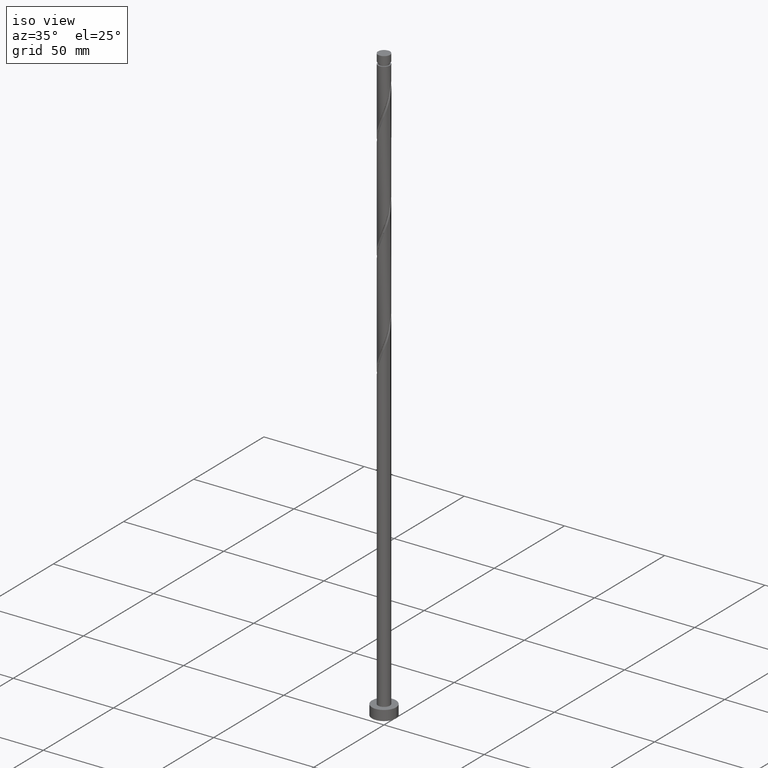
[diagram: clean part render]
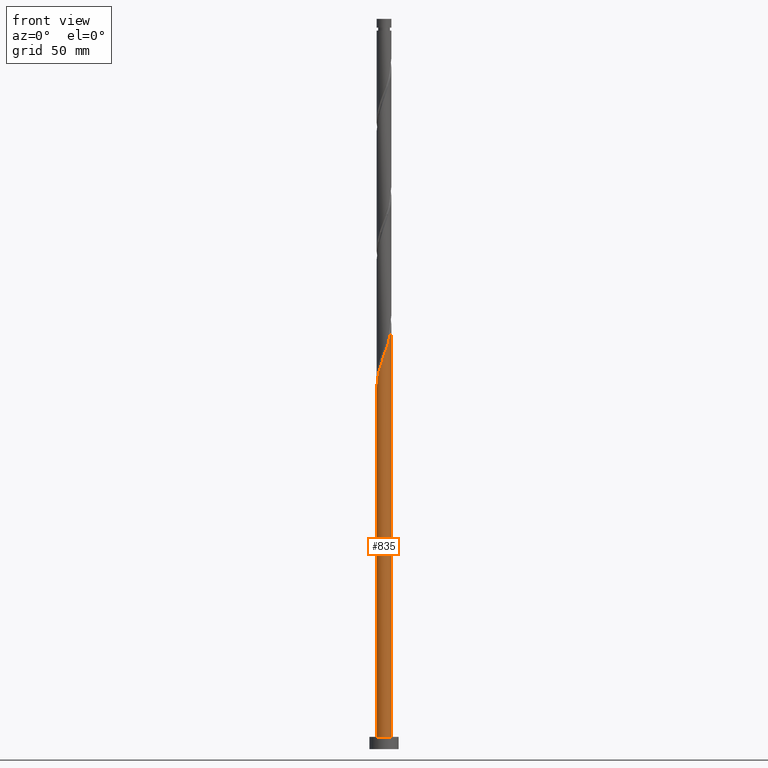
[diagram: tour spotlight — one face highlighted and labeled with its STEP entity id]
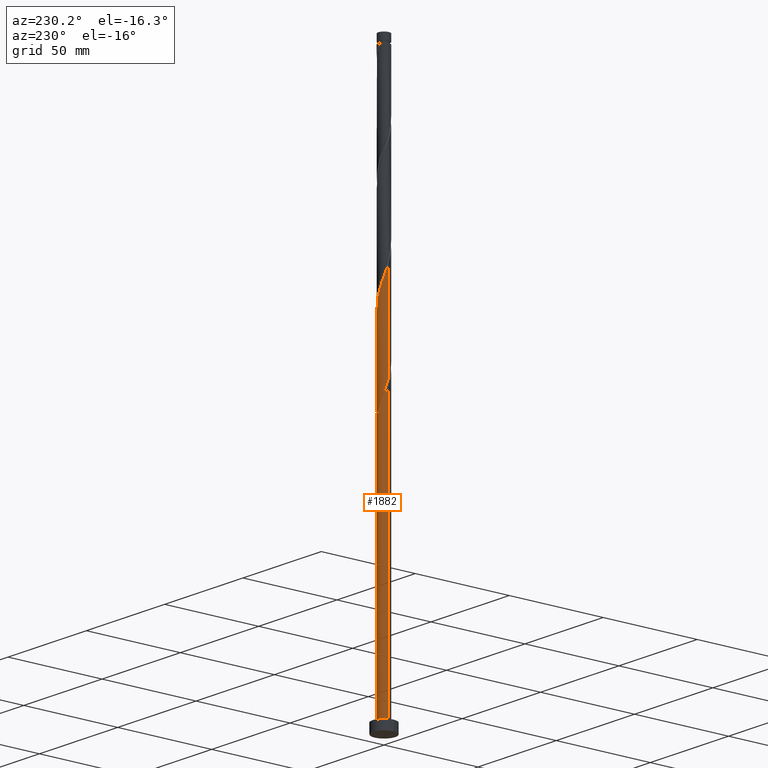
[diagram: tour spotlight — one face highlighted and labeled with its STEP entity id]
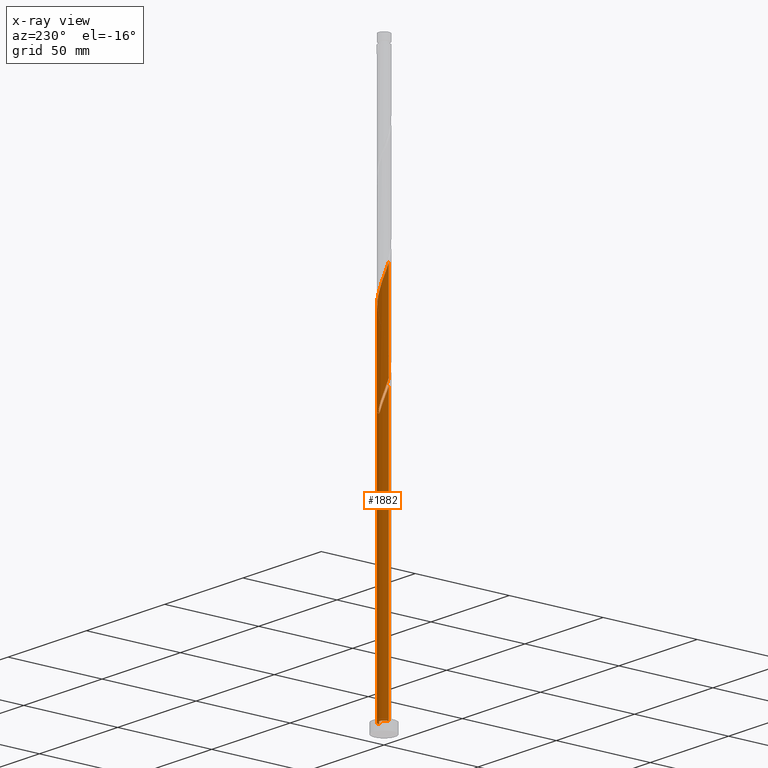
[diagram: x-ray of the same camera — body ghosted, this tour face saturated]
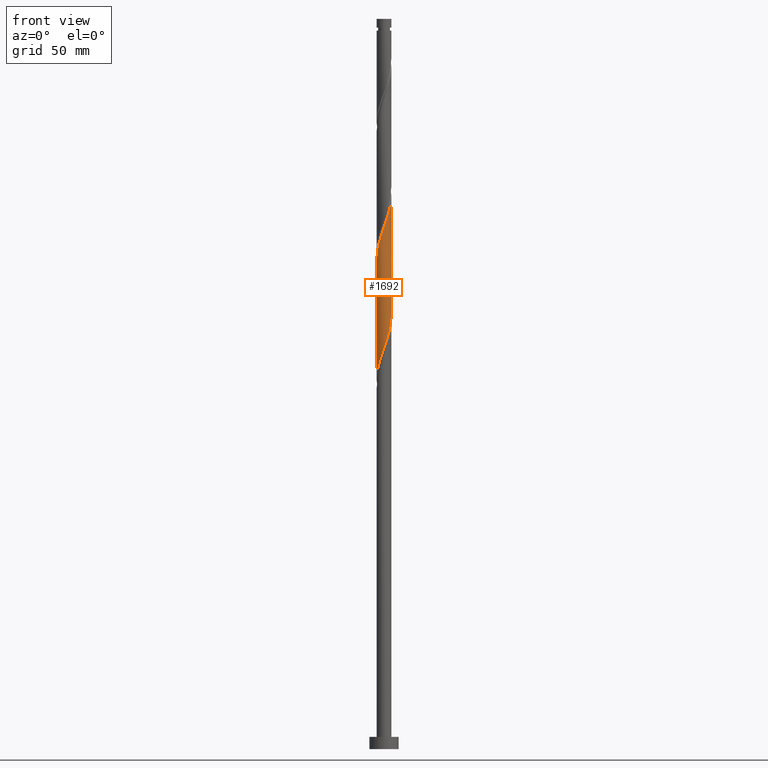
[diagram: tour spotlight — one face highlighted and labeled with its STEP entity id]
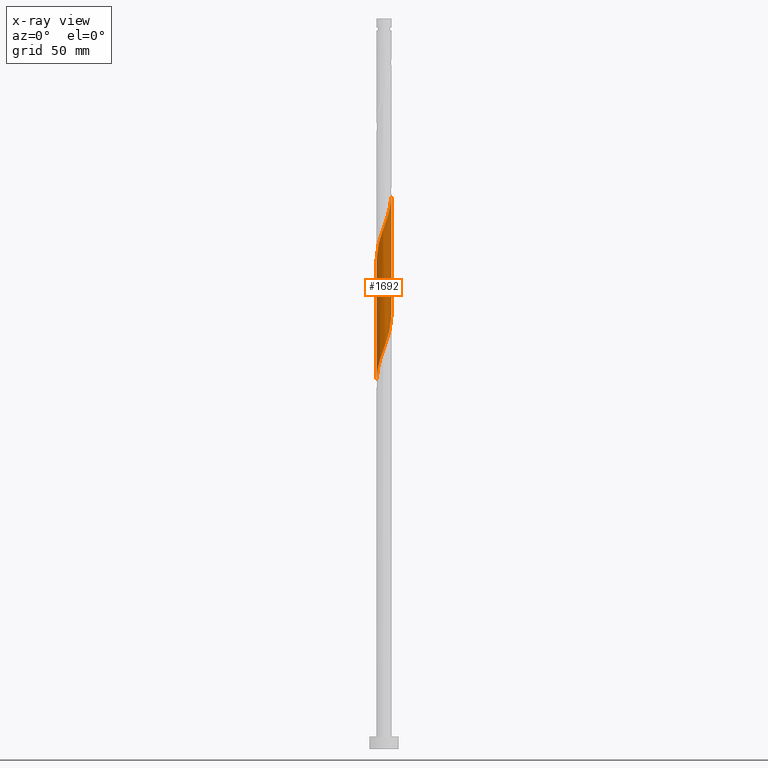
[diagram: x-ray of the same camera — body ghosted, this tour face saturated]
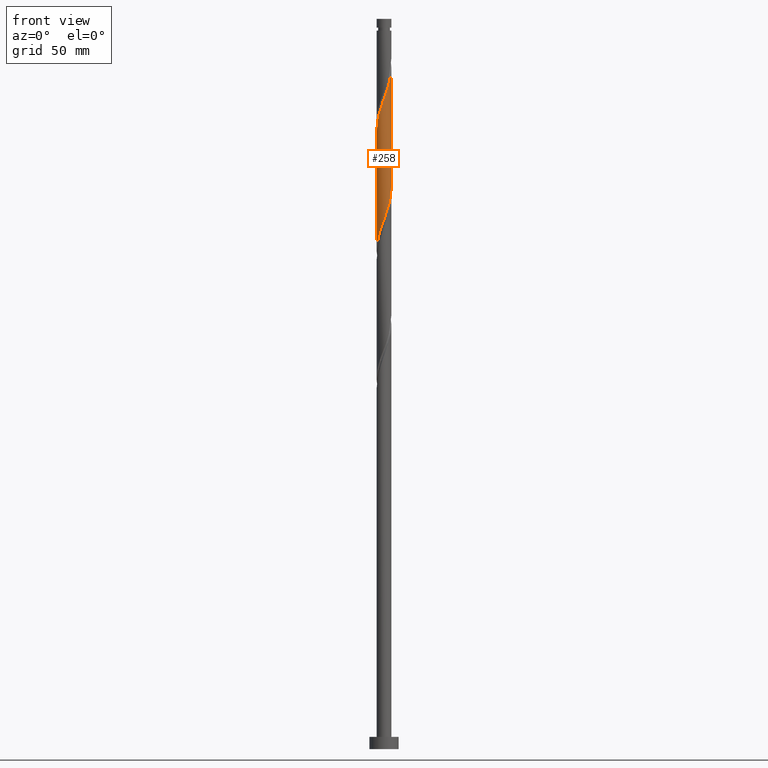
[diagram: tour spotlight — one face highlighted and labeled with its STEP entity id]
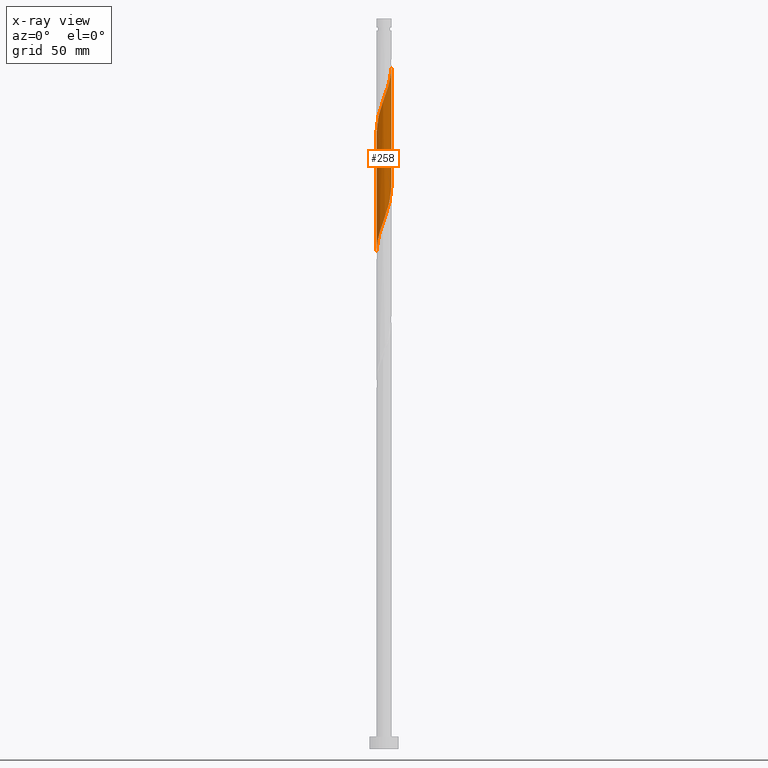
[diagram: x-ray of the same camera — body ghosted, this tour face saturated]
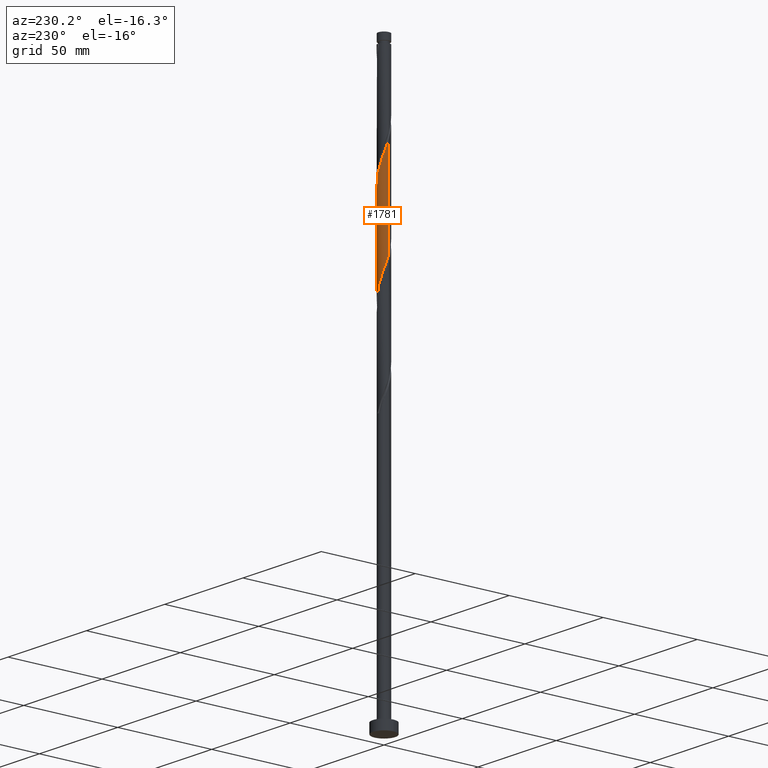
[diagram: tour spotlight — one face highlighted and labeled with its STEP entity id]
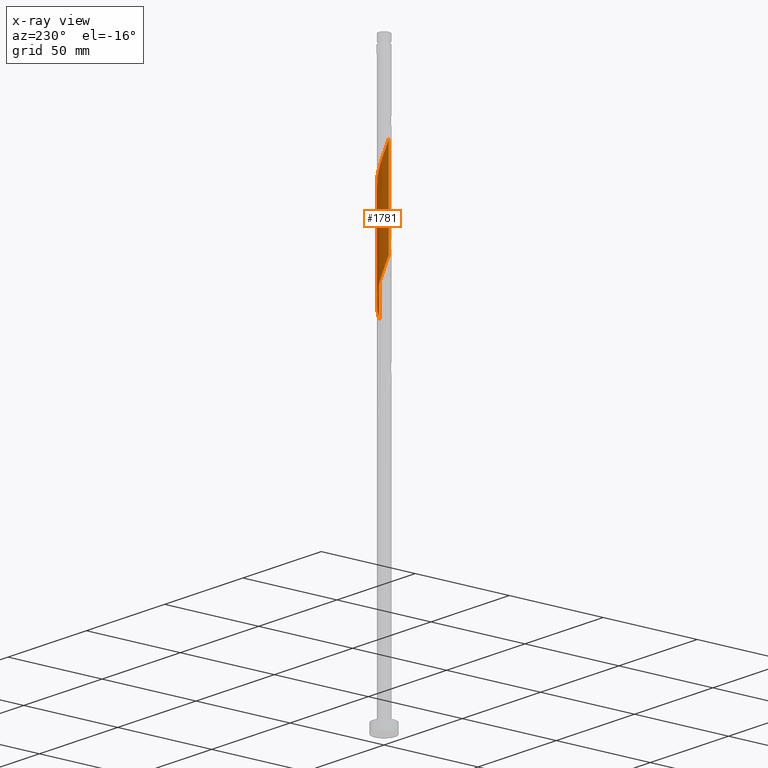
[diagram: x-ray of the same camera — body ghosted, this tour face saturated]
A machine part: a face-by-face anatomy tour. The part has 21 B-rep faces; the first image is the clean iso view, then the 5 largest visible faces are spotlighted one at a time (largest first), each with its STEP entity span.

Face 1 — front view, entity #835. In plain terms, the highlighted cylindrical surface (edge-blend (fillet) strip) has radius 3 mm, axis along (-0, -0, -1).
Definition (entity closure, byte-faithful):
#5 = CARTESIAN_POINT ( 'NONE',  ( -3.000000000000004441, -1.268690749329704668E-15, 147.6574096799395761 ) ) ;
#14 = CARTESIAN_POINT ( 'NONE',  ( -2.185491920847153935, -2.082758216016312502, 154.0194267578456220 ) ) ;
#39 = CARTESIAN_POINT ( 'NONE',  ( -0.07218693100826270581, -2.999131382082424579, 160.5819267578455367 ) ) ;
#46 = CARTESIAN_POINT ( 'NONE',  ( 1.813489815877873168, -2.389823149881023845, 166.2069267578455651 ) ) ;
#50 = AXIS2_PLACEMENT_3D ( 'NONE', #267, #1447, #871 ) ;
#56 = CARTESIAN_POINT ( 'NONE',  ( 2.824749718427056688, -1.065385259292572107, 170.8944267578456788 ) ) ;
#65 = LINE ( 'NONE', #1846, #977 ) ;
#116 = EDGE_CURVE ( 'NONE', #1753, #889, #1278, .T. ) ;
#122 = CARTESIAN_POINT ( 'NONE',  ( -3.000000000000000444, 0.000000000000000000, 5.000000000000000000 ) ) ;
#197 = CARTESIAN_POINT ( 'NONE',  ( 1.236236160654867744, -2.733444741546705803, 164.3319267578455651 ) ) ;
#206 = CARTESIAN_POINT ( 'NONE',  ( 2.516856822501210900, -1.667239772048622948, 169.0194267578456220 ) ) ;
#247 = CARTESIAN_POINT ( 'NONE',  ( 3.000000000000000444, 3.673940397442059868E-16, 298.5000000000000000 ) ) ;
#267 = CARTESIAN_POINT ( 'NONE',  ( 0.000000000000000000, 0.000000000000000000, 298.5000000000000000 ) ) ;
#278 = FACE_OUTER_BOUND ( 'NONE', #875, .T. ) ;
#332 = CARTESIAN_POINT ( 'NONE',  ( -1.667239772048622726, -2.516856822501210900, 155.8944267578456788 ) ) ;
#341 = CARTESIAN_POINT ( 'NONE',  ( -1.065385259292572107, -2.824749718427056688, 157.7694267578456788 ) ) ;
#366 = CARTESIAN_POINT ( 'NONE',  ( 3.000000000000004441, -0.03609869149917581399, 173.8070469917144294 ) ) ;
#409 = ORIENTED_EDGE ( 'NONE', *, *, #907, .F. ) ;
#433 = CIRCLE ( 'NONE', #1501, 3.000000000000000444 ) ;
#473 = EDGE_CURVE ( 'NONE', #1681, #1087, #65, .T. ) ;
#478 = CARTESIAN_POINT ( 'NONE',  ( -3.000000000000003553, -0.3015113445777696799, 148.4956807589031769 ) ) ;
#620 = CARTESIAN_POINT ( 'NONE',  ( -2.872735104178516963, -0.9282509055703016543, 150.2694267578456220 ) ) ;
#635 = CARTESIAN_POINT ( 'NONE',  ( 3.000000000000000444, 3.673940397442059868E-16, 5.000000000000000000 ) ) ;
#654 = CARTESIAN_POINT ( 'NONE',  ( 0.2657340189576473666, -3.007264895821492701, 161.5194267578456504 ) ) ;
#668 = CARTESIAN_POINT ( 'NONE',  ( 2.990997868343357791, -0.4101078809741732223, 172.7694267578456504 ) ) ;
#701 = ORIENTED_EDGE ( 'NONE', *, *, #116, .F. ) ;
#710 = DIRECTION ( 'NONE',  ( -0.000000000000000000, -0.000000000000000000, -1.000000000000000000 ) ) ;
#802 = CARTESIAN_POINT ( 'NONE',  ( -3.000000000000004441, -1.268690749329704668E-15, 147.6574096799395761 ) ) ;
#803 = CARTESIAN_POINT ( 'NONE',  ( 2.670803270464133572, -1.366312515670597305, 169.9569267578456220 ) ) ;
#811 = CARTESIAN_POINT ( 'NONE',  ( 2.907873793385206795, -0.7377465701333723036, 171.8319267578455651 ) ) ;
#835 = ADVANCED_FACE ( 'NONE', ( #278 ), #1185, .T. ) ;
#871 = DIRECTION ( 'NONE',  ( -1.000000000000000000, 0.000000000000000000, 0.000000000000000000 ) ) ;
#875 = EDGE_LOOP ( 'NONE', ( #701, #409, #1878, #1016 ) ) ;
#886 =( BOUNDED_CURVE ( )  B_SPLINE_CURVE ( 2, ( #5, #478, #1077, #620, #1200, #1358, #1057, #14, #1067, #332, #1507, #341, #931, #1380, #39, #654, #1535, #1832, #197, #1390, #46, #1095, #1524, #206, #803, #56, #811, #668, #1683, #366, #1849 ),
 .UNSPECIFIED., .F., .T. ) 
 B_SPLINE_CURVE_WITH_KNOTS ( ( 3, 2, 2, 2, 2, 2, 2, 2, 2, 2, 2, 2, 2, 2, 2, 3 ),
 ( 0.05453034012992219459, 0.06250000000000000000, 0.07142857142857139685, 0.08035714285714290472, 0.08928571428571430157, 0.09821428571428569843, 0.1071428571428570953, 0.1160714285714286031, 0.1250000000000000000, 0.1339285714285713969, 0.1428571428571429047, 0.1517857142857143016, 0.1607142857142856984, 0.1696428571428570953, 0.1785714285714286031, 0.1795303401299219448 ),
 .UNSPECIFIED. ) 
 CURVE ( )  GEOMETRIC_REPRESENTATION_ITEM ( )  RATIONAL_B_SPLINE_CURVE ( ( 0.9079949616362167353, 0.9039886423360798950, 0.9090909090909468082, 0.9033747362666214586, 0.9090909090909468082, 0.9033747362666214586, 0.9090909090909468082, 0.9033747362666214586, 0.9090909090909468082, 0.9033747362666214586, 0.9090909090909468082, 0.9033747362666214586, 0.9090909090909468082, 0.9033747362666214586, 0.9090909090909468082, 0.9033747362666214586, 0.9090909090909468082, 0.9033747362666214586, 0.9090909090909468082, 0.9033747362666214586, 0.9090909090909468082, 0.9033747362666214586, 0.9090909090909468082, 0.9033747362666214586, 0.9090909090909468082, 0.9033747362666214586, 0.9090909090909468082, 0.9033747362666214586, 0.9090909090909468082, 0.9084770030214885939, 0.9079949616362169573 ) ) 
 REPRESENTATION_ITEM ( '' )  );
#889 = VERTEX_POINT ( 'NONE', #635 ) ;
#907 = EDGE_CURVE ( 'NONE', #1681, #1753, #886, .T. ) ;
#931 = CARTESIAN_POINT ( 'NONE',  ( -0.7377465701333718595, -2.907873793385206795, 158.7069267578455936 ) ) ;
#977 = VECTOR ( 'NONE', #980, 1000.000000000000000 ) ;
#980 = DIRECTION ( 'NONE',  ( -0.000000000000000000, -0.000000000000000000, -1.000000000000000000 ) ) ;
#1016 = ORIENTED_EDGE ( 'NONE', *, *, #1204, .T. ) ;
#1017 = CARTESIAN_POINT ( 'NONE',  ( 3.000000000000004441, 8.656948642485043625E-16, 173.9074096799394908 ) ) ;
#1041 = VECTOR ( 'NONE', #710, 1000.000000000000000 ) ;
#1057 = CARTESIAN_POINT ( 'NONE',  ( -2.389823149881023845, -1.813489815877873168, 153.0819267578455367 ) ) ;
#1067 = CARTESIAN_POINT ( 'NONE',  ( -1.926365846447887886, -2.299807519258761701, 154.9569267578455936 ) ) ;
#1077 = CARTESIAN_POINT ( 'NONE',  ( -2.940000000000004388, -0.5969924622639743994, 149.3319267578456220 ) ) ;
#1087 = VERTEX_POINT ( 'NONE', #122 ) ;
#1095 = CARTESIAN_POINT ( 'NONE',  ( 2.082758216016312502, -2.185491920847153935, 167.1444267578456504 ) ) ;
#1137 = DIRECTION ( 'NONE',  ( 1.000000000000000000, 0.000000000000000000, 0.000000000000000000 ) ) ;
#1185 = CYLINDRICAL_SURFACE ( 'NONE', #50, 3.000000000000000444 ) ;
#1200 = CARTESIAN_POINT ( 'NONE',  ( -2.733444741546705803, -1.236236160654867744, 151.2069267578455936 ) ) ;
#1204 = EDGE_CURVE ( 'NONE', #1087, #889, #433, .T. ) ;
#1278 = LINE ( 'NONE', #247, #1041 ) ;
#1298 = CARTESIAN_POINT ( 'NONE',  ( 0.000000000000000000, 0.000000000000000000, 5.000000000000000000 ) ) ;
#1358 = CARTESIAN_POINT ( 'NONE',  ( -2.594154378914897308, -1.544221415739434722, 152.1444267578455936 ) ) ;
#1380 = CARTESIAN_POINT ( 'NONE',  ( -0.4101078809741727782, -2.990997868343358679, 159.6444267578456220 ) ) ;
#1390 = CARTESIAN_POINT ( 'NONE',  ( 1.544221415739434500, -2.594154378914897308, 165.2694267578457072 ) ) ;
#1447 = DIRECTION ( 'NONE',  ( -0.000000000000000000, -0.000000000000000000, -1.000000000000000000 ) ) ;
#1501 = AXIS2_PLACEMENT_3D ( 'NONE', #1298, #1899, #1137 ) ;
#1507 = CARTESIAN_POINT ( 'NONE',  ( -1.366312515670596639, -2.670803270464133572, 156.8319267578455936 ) ) ;
#1524 = CARTESIAN_POINT ( 'NONE',  ( 2.299807519258761701, -1.926365846447887886, 168.0819267578455936 ) ) ;
#1535 = CARTESIAN_POINT ( 'NONE',  ( 0.5969924622639742884, -2.940000000000004388, 162.4569267578455651 ) ) ;
#1681 = VERTEX_POINT ( 'NONE', #802 ) ;
#1683 = CARTESIAN_POINT ( 'NONE',  ( 2.999131382082424579, -0.07218693100826290010, 173.7069267578455367 ) ) ;
#1753 = VERTEX_POINT ( 'NONE', #1017 ) ;
#1832 = CARTESIAN_POINT ( 'NONE',  ( 0.9282509055703015433, -2.872735104178516963, 163.3944267578455936 ) ) ;
#1846 = CARTESIAN_POINT ( 'NONE',  ( -3.000000000000000444, 0.000000000000000000, 298.5000000000000000 ) ) ;
#1849 = CARTESIAN_POINT ( 'NONE',  ( 3.000000000000004885, 8.656948642485044611E-16, 173.9074096799394908 ) ) ;
#1878 = ORIENTED_EDGE ( 'NONE', *, *, #473, .T. ) ;
#1899 = DIRECTION ( 'NONE',  ( 0.000000000000000000, 0.000000000000000000, 1.000000000000000000 ) ) ;

Face 2 — auxiliary view, entity #1882. An x-ray twin of the same camera follows (body ghosted, this face saturated) — the face is partly hidden behind the body. In plain terms, the highlighted cylindrical surface (edge-blend (fillet) strip) has radius 3 mm, axis along (-0, -0, -1).
Definition (entity closure, byte-faithful):
#11 = VERTEX_POINT ( 'NONE', #373 ) ;
#51 = CARTESIAN_POINT ( 'NONE',  ( -3.000000000000000888, 0.3015113445777575785, 150.1681727567880955 ) ) ;
#65 = LINE ( 'NONE', #1846, #977 ) ;
#94 = CARTESIAN_POINT ( 'NONE',  ( -2.389823149881020292, 1.813489815877871392, 145.5819267578455367 ) ) ;
#96 = CARTESIAN_POINT ( 'NONE',  ( 2.872735104178516963, 0.9282509055703013212, 176.5194267578456504 ) ) ;
#100 = CARTESIAN_POINT ( 'NONE',  ( -2.907873793385206795, 0.7377465701333717485, 145.5819267578455936 ) ) ;
#107 = ORIENTED_EDGE ( 'NONE', *, *, #116, .T. ) ;
#108 = CARTESIAN_POINT ( 'NONE',  ( -3.000000000000004441, -1.268690749329704668E-15, 200.1574096799395477 ) ) ;
#116 = EDGE_CURVE ( 'NONE', #1753, #889, #1278, .T. ) ;
#121 = CARTESIAN_POINT ( 'NONE',  ( 0.000000000000000000, 0.000000000000000000, 298.5000000000000000 ) ) ;
#122 = CARTESIAN_POINT ( 'NONE',  ( -3.000000000000000444, 0.000000000000000000, 5.000000000000000000 ) ) ;
#132 = CARTESIAN_POINT ( 'NONE',  ( -2.670803270464134016, 1.366312515670596417, 196.2069267578455936 ) ) ;
#148 = CARTESIAN_POINT ( 'NONE',  ( -0.9282509055703016543, 2.872735104178516963, 137.1444267578456504 ) ) ;
#193 = CARTESIAN_POINT ( 'NONE',  ( -3.000000000000000000, -6.309870756225134886E-15, 151.0064438357516678 ) ) ;
#212 = CARTESIAN_POINT ( 'NONE',  ( -0.07218693100826180375, 2.999131382082419250, 138.0819267578456220 ) ) ;
#228 = DIRECTION ( 'NONE',  ( 0.000000000000000000, 0.000000000000000000, 1.000000000000000000 ) ) ;
#243 = CARTESIAN_POINT ( 'NONE',  ( 0.5969924622639748435, 2.939999999999999503, 136.2069267578455936 ) ) ;
#245 = CARTESIAN_POINT ( 'NONE',  ( -1.813489815877873390, 2.389823149881023401, 192.4569267578455651 ) ) ;
#247 = CARTESIAN_POINT ( 'NONE',  ( 3.000000000000000444, 3.673940397442059868E-16, 298.5000000000000000 ) ) ;
#257 = FACE_OUTER_BOUND ( 'NONE', #1304, .T. ) ;
#277 = CARTESIAN_POINT ( 'NONE',  ( -3.000000000000004441, 0.03609869149916598852, 147.5570469917145147 ) ) ;
#284 = CARTESIAN_POINT ( 'NONE',  ( -1.236236160654867966, 2.733444741546705803, 190.5819267578456220 ) ) ;
#288 = CARTESIAN_POINT ( 'NONE',  ( -1.813489815877873390, 2.389823149881023401, 139.9569267578455367 ) ) ;
#304 =( BOUNDED_CURVE ( )  B_SPLINE_CURVE ( 2, ( #399, #148, #1880, #578, #288, #860, #745, #1768, #870, #881, #100, #1748, #1593, #277, #1892 ),
 .UNSPECIFIED., .F., .T. ) 
 B_SPLINE_CURVE_WITH_KNOTS ( ( 3, 2, 2, 2, 2, 2, 2, 3 ),
 ( 0.000000000000000000, 0.008928571428571396851, 0.01785714285714290472, 0.02678571428571430157, 0.03571428571428569843, 0.04464285714285709528, 0.05357142857142860315, 0.05453034012992218765 ),
 .UNSPECIFIED. ) 
 CURVE ( )  GEOMETRIC_REPRESENTATION_ITEM ( )  RATIONAL_B_SPLINE_CURVE ( ( 0.9090909090909468082, 0.9033747362666214586, 0.9090909090909468082, 0.9033747362666214586, 0.9090909090909468082, 0.9033747362666214586, 0.9090909090909468082, 0.9033747362666214586, 0.9090909090909468082, 0.9033747362666214586, 0.9090909090909468082, 0.9033747362666214586, 0.9090909090909468082, 0.9084770030214884828, 0.9079949616362167353 ) ) 
 REPRESENTATION_ITEM ( '' )  );
#329 = ORIENTED_EDGE ( 'NONE', *, *, #1742, .F. ) ;
#363 = CARTESIAN_POINT ( 'NONE',  ( -1.366312515670593752, 2.670803270464129131, 141.8319267578456220 ) ) ;
#364 = VERTEX_POINT ( 'NONE', #1083 ) ;
#373 = CARTESIAN_POINT ( 'NONE',  ( -0.5969924622639738443, 2.940000000000004388, 136.2069267578455936 ) ) ;
#399 = CARTESIAN_POINT ( 'NONE',  ( -0.5969924622639738443, 2.940000000000004388, 136.2069267578455936 ) ) ;
#423 = ORIENTED_EDGE ( 'NONE', *, *, #438, .F. ) ;
#432 = CARTESIAN_POINT ( 'NONE',  ( -2.990997868343358679, 0.4101078809741727782, 199.0194267578456220 ) ) ;
#438 = EDGE_CURVE ( 'NONE', #951, #364, #897, .T. ) ;
#447 = CARTESIAN_POINT ( 'NONE',  ( -0.2657340189576470335, 3.007264895821492701, 187.7694267578456504 ) ) ;
#462 = VERTEX_POINT ( 'NONE', #1257 ) ;
#468 = AXIS2_PLACEMENT_3D ( 'NONE', #121, #1227, #926 ) ;
#473 = EDGE_CURVE ( 'NONE', #1681, #1087, #65, .T. ) ;
#502 = VECTOR ( 'NONE', #748, 1000.000000000000000 ) ;
#559 = ORIENTED_EDGE ( 'NONE', *, *, #1632, .T. ) ;
#571 = CYLINDRICAL_SURFACE ( 'NONE', #468, 3.000000000000000444 ) ;
#578 = CARTESIAN_POINT ( 'NONE',  ( -1.544221415739434944, 2.594154378914897308, 139.0194267578456504 ) ) ;
#587 = CARTESIAN_POINT ( 'NONE',  ( -1.544221415739434944, 2.594154378914897308, 191.5194267578456788 ) ) ;
#591 = CARTESIAN_POINT ( 'NONE',  ( 0.000000000000000000, 0.000000000000000000, 136.2069267578455936 ) ) ;
#595 = CARTESIAN_POINT ( 'NONE',  ( 1.926365846447887886, 2.299807519258761701, 181.2069267578455936 ) ) ;
#625 = EDGE_CURVE ( 'NONE', #462, #951, #1618, .T. ) ;
#631 = ORIENTED_EDGE ( 'NONE', *, *, #473, .F. ) ;
#635 = CARTESIAN_POINT ( 'NONE',  ( 3.000000000000000444, 3.673940397442059868E-16, 5.000000000000000000 ) ) ;
#664 = CARTESIAN_POINT ( 'NONE',  ( -2.939999999999999503, 0.5969924622639743994, 149.3319267578455936 ) ) ;
#704 = CARTESIAN_POINT ( 'NONE',  ( -2.185491920847149938, 2.082758216016309394, 144.6444267578457072 ) ) ;
#707 = CARTESIAN_POINT ( 'NONE',  ( 0.07218693100826324704, 2.999131382082423247, 186.8319267578455367 ) ) ;
#710 = DIRECTION ( 'NONE',  ( -0.000000000000000000, -0.000000000000000000, -1.000000000000000000 ) ) ;
#729 = ORIENTED_EDGE ( 'NONE', *, *, #1183, .T. ) ;
#730 = CARTESIAN_POINT ( 'NONE',  ( -2.999131382082424579, 0.07218693100826248377, 199.9569267578455651 ) ) ;
#745 = CARTESIAN_POINT ( 'NONE',  ( -2.299807519258761701, 1.926365846447887886, 141.8319267578455651 ) ) ;
#748 = DIRECTION ( 'NONE',  ( -0.000000000000000000, -0.000000000000000000, -1.000000000000000000 ) ) ;
#777 = ORIENTED_EDGE ( 'NONE', *, *, #1293, .F. ) ;
#802 = CARTESIAN_POINT ( 'NONE',  ( -3.000000000000004441, -1.268690749329704668E-15, 147.6574096799395761 ) ) ;
#818 = CARTESIAN_POINT ( 'NONE',  ( -1.667239772048618951, 2.516856822501208235, 142.7694267578455651 ) ) ;
#834 = CARTESIAN_POINT ( 'NONE',  ( -2.733444741546700918, 1.236236160654866634, 147.4569267578456220 ) ) ;
#837 = CARTESIAN_POINT ( 'NONE',  ( -3.000000000000004441, 0.03609869149916598852, 200.0570469917144862 ) ) ;
#838 = CARTESIAN_POINT ( 'NONE',  ( -2.999999999999999556, -6.309870756225134886E-15, 151.0064438357516963 ) ) ;
#853 = CARTESIAN_POINT ( 'NONE',  ( -2.299807519258761701, 1.926365846447887886, 194.3319267578456220 ) ) ;
#860 = CARTESIAN_POINT ( 'NONE',  ( -2.082758216016312502, 2.185491920847153935, 140.8944267578456504 ) ) ;
#866 = CARTESIAN_POINT ( 'NONE',  ( -2.824749718427056688, 1.065385259292571440, 197.1444267578456788 ) ) ;
#870 = CARTESIAN_POINT ( 'NONE',  ( -2.670803270464134016, 1.366312515670596417, 143.7069267578455936 ) ) ;
#876 = CARTESIAN_POINT ( 'NONE',  ( 3.000000000000005773, 0.3015113445777600210, 174.7456807589031200 ) ) ;
#881 = CARTESIAN_POINT ( 'NONE',  ( -2.824749718427056688, 1.065385259292571440, 144.6444267578456220 ) ) ;
#884 = CARTESIAN_POINT ( 'NONE',  ( -3.000000000000000444, 0.000000000000000000, 298.5000000000000000 ) ) ;
#889 = VERTEX_POINT ( 'NONE', #635 ) ;
#897 =( BOUNDED_CURVE ( )  B_SPLINE_CURVE ( 2, ( #193, #51, #664, #1207, #834, #1530, #94, #704, #1248, #818, #363, #1839, #1688, #1104, #212, #1867, #243 ),
 .UNSPECIFIED., .F., .T. ) 
 B_SPLINE_CURVE_WITH_KNOTS ( ( 3, 2, 2, 2, 2, 2, 2, 2, 3 ),
 ( 0.9295303401299218615, 0.9375000000000000000, 0.9464285714285713969, 0.9553571428571429047, 0.9642857142857143016, 0.9732142857142856984, 0.9821428571428570953, 0.9910714285714286031, 1.000000000000000000 ),
 .UNSPECIFIED. ) 
 CURVE ( )  GEOMETRIC_REPRESENTATION_ITEM ( )  RATIONAL_B_SPLINE_CURVE ( ( 0.9079949616362107401, 0.9039886423360733447, 0.9090909090909403689, 0.9033747362666152414, 0.9090909090909403689, 0.9033747362666152414, 0.9090909090909403689, 0.9033747362666152414, 0.9090909090909403689, 0.9033747362666152414, 0.9090909090909403689, 0.9033747362666152414, 0.9090909090909403689, 0.9033747362666152414, 0.9090909090909403689, 0.9033747362666152414, 0.9090909090909403689 ) ) 
 REPRESENTATION_ITEM ( '' )  );
#898 = AXIS2_PLACEMENT_3D ( 'NONE', #591, #1163, #1173 ) ;
#926 = DIRECTION ( 'NONE',  ( -1.000000000000000000, 0.000000000000000000, 0.000000000000000000 ) ) ;
#951 = VERTEX_POINT ( 'NONE', #838 ) ;
#977 = VECTOR ( 'NONE', #980, 1000.000000000000000 ) ;
#980 = DIRECTION ( 'NONE',  ( -0.000000000000000000, -0.000000000000000000, -1.000000000000000000 ) ) ;
#1006 = CARTESIAN_POINT ( 'NONE',  ( -2.516856822501210900, 1.667239772048622504, 195.2694267578456220 ) ) ;
#1017 = CARTESIAN_POINT ( 'NONE',  ( 3.000000000000004441, 8.656948642485043625E-16, 173.9074096799394908 ) ) ;
#1030 = CARTESIAN_POINT ( 'NONE',  ( -2.082758216016312502, 2.185491920847153935, 193.3944267578456220 ) ) ;
#1041 = VECTOR ( 'NONE', #710, 1000.000000000000000 ) ;
#1083 = CARTESIAN_POINT ( 'NONE',  ( 0.5969924622639748435, 2.939999999999999503, 136.2069267578455936 ) ) ;
#1087 = VERTEX_POINT ( 'NONE', #122 ) ;
#1104 = CARTESIAN_POINT ( 'NONE',  ( -0.4101078809741713904, 2.990997868343352906, 139.0194267578455651 ) ) ;
#1115 = CARTESIAN_POINT ( 'NONE',  ( 0.000000000000000000, 0.000000000000000000, 5.000000000000000000 ) ) ;
#1163 = DIRECTION ( 'NONE',  ( 0.000000000000000000, -0.000000000000000000, -1.000000000000000000 ) ) ;
#1170 = CARTESIAN_POINT ( 'NONE',  ( -2.907873793385206795, 0.7377465701333717485, 198.0819267578455651 ) ) ;
#1173 = DIRECTION ( 'NONE',  ( -1.000000000000000000, 0.000000000000000000, 0.000000000000000000 ) ) ;
#1179 = CARTESIAN_POINT ( 'NONE',  ( 1.065385259292572329, 2.824749718427055800, 184.0194267578456504 ) ) ;
#1183 = EDGE_CURVE ( 'NONE', #11, #364, #1395, .T. ) ;
#1207 = CARTESIAN_POINT ( 'NONE',  ( -2.872735104178511190, 0.9282509055703006551, 148.3944267578456504 ) ) ;
#1227 = DIRECTION ( 'NONE',  ( -0.000000000000000000, -0.000000000000000000, -1.000000000000000000 ) ) ;
#1248 = CARTESIAN_POINT ( 'NONE',  ( -1.926365846447884556, 2.299807519258758592, 143.7069267578455651 ) ) ;
#1257 = CARTESIAN_POINT ( 'NONE',  ( -3.000000000000004441, -1.268690749329704668E-15, 200.1574096799395193 ) ) ;
#1278 = LINE ( 'NONE', #247, #1041 ) ;
#1292 = AXIS2_PLACEMENT_3D ( 'NONE', #1115, #228, #1409 ) ;
#1293 = EDGE_CURVE ( 'NONE', #11, #1681, #304, .T. ) ;
#1304 = EDGE_LOOP ( 'NONE', ( #329, #107, #559, #631, #777, #729, #423, #1908 ) ) ;
#1315 = CARTESIAN_POINT ( 'NONE',  ( 3.000000000000004885, 8.656948642485044611E-16, 173.9074096799394908 ) ) ;
#1395 = CIRCLE ( 'NONE', #898, 3.000000000000000444 ) ;
#1409 = DIRECTION ( 'NONE',  ( 1.000000000000000000, 0.000000000000000000, 0.000000000000000000 ) ) ;
#1419 = CIRCLE ( 'NONE', #1292, 3.000000000000000444 ) ;
#1429 = CARTESIAN_POINT ( 'NONE',  ( 0.4101078809741733888, 2.990997868343357791, 185.8944267578456788 ) ) ;
#1439 = CARTESIAN_POINT ( 'NONE',  ( -0.9282509055703016543, 2.872735104178516963, 189.6444267578455651 ) ) ;
#1462 = CARTESIAN_POINT ( 'NONE',  ( 0.7377465701333725256, 2.907873793385206795, 184.9569267578455651 ) ) ;
#1530 = CARTESIAN_POINT ( 'NONE',  ( -2.594154378914891090, 1.544221415739432945, 146.5194267578455936 ) ) ;
#1593 = CARTESIAN_POINT ( 'NONE',  ( -2.999131382082424579, 0.07218693100826248377, 147.4569267578456220 ) ) ;
#1600 = CARTESIAN_POINT ( 'NONE',  ( 2.594154378914897308, 1.544221415739434500, 178.3944267578456504 ) ) ;
#1610 = CARTESIAN_POINT ( 'NONE',  ( 2.733444741546706247, 1.236236160654867300, 177.4569267578455651 ) ) ;
#1618 = LINE ( 'NONE', #884, #502 ) ;
#1632 = EDGE_CURVE ( 'NONE', #889, #1087, #1419, .T. ) ;
#1681 = VERTEX_POINT ( 'NONE', #802 ) ;
#1688 = CARTESIAN_POINT ( 'NONE',  ( -0.7377465701333703052, 2.907873793385202355, 139.9569267578455936 ) ) ;
#1729 = CARTESIAN_POINT ( 'NONE',  ( 2.185491920847153935, 2.082758216016312502, 180.2694267578455936 ) ) ;
#1733 =( BOUNDED_CURVE ( )  B_SPLINE_CURVE ( 2, ( #1315, #876, #1897, #96, #1610, #1600, #1875, #1729, #595, #1743, #1752, #1179, #1462, #1429, #707, #447, #1905, #1439, #284, #587, #245, #1030, #853, #1006, #132, #866, #1170, #432, #730, #837, #108 ),
 .UNSPECIFIED., .F., .T. ) 
 B_SPLINE_CURVE_WITH_KNOTS ( ( 3, 2, 2, 2, 2, 2, 2, 2, 2, 2, 2, 2, 2, 2, 2, 3 ),
 ( 0.1795303401299219448, 0.1875000000000000000, 0.1964285714285713969, 0.2053571428571429047, 0.2142857142857143016, 0.2232142857142856984, 0.2321428571428570953, 0.2410714285714286031, 0.2500000000000000000, 0.2589285714285713969, 0.2678571428571429047, 0.2767857142857143016, 0.2857142857142856984, 0.2946428571428570953, 0.3035714285714286031, 0.3045303401299221946 ),
 .UNSPECIFIED. ) 
 CURVE ( )  GEOMETRIC_REPRESENTATION_ITEM ( )  RATIONAL_B_SPLINE_CURVE ( ( 0.9079949616362169573, 0.9039886423360796730, 0.9090909090909468082, 0.9033747362666214586, 0.9090909090909468082, 0.9033747362666214586, 0.9090909090909468082, 0.9033747362666214586, 0.9090909090909468082, 0.9033747362666214586, 0.9090909090909468082, 0.9033747362666214586, 0.9090909090909468082, 0.9033747362666214586, 0.9090909090909468082, 0.9033747362666214586, 0.9090909090909468082, 0.9033747362666214586, 0.9090909090909468082, 0.9033747362666214586, 0.9090909090909468082, 0.9033747362666214586, 0.9090909090909468082, 0.9033747362666214586, 0.9090909090909468082, 0.9033747362666214586, 0.9090909090909468082, 0.9033747362666214586, 0.9090909090909468082, 0.9084770030214884828, 0.9079949616362167353 ) ) 
 REPRESENTATION_ITEM ( '' )  );
#1742 = EDGE_CURVE ( 'NONE', #1753, #462, #1733, .T. ) ;
#1743 = CARTESIAN_POINT ( 'NONE',  ( 1.667239772048622948, 2.516856822501210900, 182.1444267578456504 ) ) ;
#1748 = CARTESIAN_POINT ( 'NONE',  ( -2.990997868343358679, 0.4101078809741727782, 146.5194267578456504 ) ) ;
#1752 = CARTESIAN_POINT ( 'NONE',  ( 1.366312515670597305, 2.670803270464133572, 183.0819267578455651 ) ) ;
#1753 = VERTEX_POINT ( 'NONE', #1017 ) ;
#1768 = CARTESIAN_POINT ( 'NONE',  ( -2.516856822501210900, 1.667239772048622504, 142.7694267578456220 ) ) ;
#1839 = CARTESIAN_POINT ( 'NONE',  ( -1.065385259292568998, 2.824749718427052692, 140.8944267578456504 ) ) ;
#1846 = CARTESIAN_POINT ( 'NONE',  ( -3.000000000000000444, 0.000000000000000000, 298.5000000000000000 ) ) ;
#1867 = CARTESIAN_POINT ( 'NONE',  ( 0.2657340189576477552, 3.007264895821487372, 137.1444267578456220 ) ) ;
#1875 = CARTESIAN_POINT ( 'NONE',  ( 2.389823149881024733, 1.813489815877872946, 179.3319267578456220 ) ) ;
#1880 = CARTESIAN_POINT ( 'NONE',  ( -1.236236160654867966, 2.733444741546705803, 138.0819267578456504 ) ) ;
#1882 = ADVANCED_FACE ( 'NONE', ( #257 ), #571, .T. ) ;
#1892 = CARTESIAN_POINT ( 'NONE',  ( -3.000000000000004441, -1.268690749329704668E-15, 147.6574096799395761 ) ) ;
#1897 = CARTESIAN_POINT ( 'NONE',  ( 2.940000000000004388, 0.5969924622639740663, 175.5819267578456220 ) ) ;
#1905 = CARTESIAN_POINT ( 'NONE',  ( -0.5969924622639737333, 2.940000000000004388, 188.7069267578455936 ) ) ;
#1908 = ORIENTED_EDGE ( 'NONE', *, *, #625, .F. ) ;

Face 3 — front view, entity #1692. An x-ray twin of the same camera follows (body ghosted, this face saturated) — the face is partly hidden behind the body. In plain terms, the highlighted cylindrical surface (edge-blend (fillet) strip) has radius 3 mm, axis along (-0, -0, -1).
Definition (entity closure, byte-faithful):
#13 = CARTESIAN_POINT ( 'NONE',  ( -2.082758216016309838, -2.185491920847149938, 157.7694267578455651 ) ) ;
#38 = CARTESIAN_POINT ( 'NONE',  ( 0.07218693100826147069, -2.999131382082419250, 164.3319267578455651 ) ) ;
#42 = CARTESIAN_POINT ( 'NONE',  ( 1.544221415739434500, -2.594154378914897308, 217.7694267578456220 ) ) ;
#62 = CYLINDRICAL_SURFACE ( 'NONE', #1088, 3.000000000000000444 ) ;
#79 = CARTESIAN_POINT ( 'NONE',  ( 0.000000000000000000, 0.000000000000000000, 298.5000000000000000 ) ) ;
#114 = CARTESIAN_POINT ( 'NONE',  ( 2.733444741546700918, -1.236236160654866634, 173.7069267578455936 ) ) ;
#178 = CARTESIAN_POINT ( 'NONE',  ( -0.4101078809741727782, -2.990997868343358679, 212.1444267578456788 ) ) ;
#186 = CARTESIAN_POINT ( 'NONE',  ( 1.366312515670593308, -2.670803270464129131, 168.0819267578455936 ) ) ;
#236 = CARTESIAN_POINT ( 'NONE',  ( 2.999999999999999556, -2.388123763444167062E-15, 177.2564438357516394 ) ) ;
#251 = CARTESIAN_POINT ( 'NONE',  ( 2.516856822501210900, -1.667239772048622948, 221.5194267578456504 ) ) ;
#264 = CARTESIAN_POINT ( 'NONE',  ( 2.185491920847149938, -2.082758216016309838, 170.8944267578456788 ) ) ;
#302 = DIRECTION ( 'NONE',  ( -0.000000000000000000, -0.000000000000000000, -1.000000000000000000 ) ) ;
#308 = CARTESIAN_POINT ( 'NONE',  ( -0.5969924622639743994, -2.939999999999999503, 162.4569267578455651 ) ) ;
#313 = CARTESIAN_POINT ( 'NONE',  ( -2.733444741546705803, -1.236236160654867744, 203.7069267578455651 ) ) ;
#314 = ORIENTED_EDGE ( 'NONE', *, *, #1430, .F. ) ;
#326 = CARTESIAN_POINT ( 'NONE',  ( -1.366312515670596639, -2.670803270464133572, 209.3319267578455936 ) ) ;
#338 = EDGE_LOOP ( 'NONE', ( #449, #1797, #1813, #314 ) ) ;
#345 = CARTESIAN_POINT ( 'NONE',  ( 0.5969924622639742884, -2.940000000000004388, 214.9569267578455936 ) ) ;
#355 = VERTEX_POINT ( 'NONE', #1226 ) ;
#449 = ORIENTED_EDGE ( 'NONE', *, *, #522, .F. ) ;
#459 = CARTESIAN_POINT ( 'NONE',  ( 0.7377465701333697501, -2.907873793385201910, 166.2069267578456220 ) ) ;
#461 = CARTESIAN_POINT ( 'NONE',  ( -2.594154378914897308, -1.544221415739434722, 204.6444267578456220 ) ) ;
#462 = VERTEX_POINT ( 'NONE', #1257 ) ;
#477 = CARTESIAN_POINT ( 'NONE',  ( -0.9282509055703008771, -2.872735104178511190, 161.5194267578456504 ) ) ;
#484 = CARTESIAN_POINT ( 'NONE',  ( 0.4101078809741707798, -2.990997868343352906, 165.2694267578456504 ) ) ;
#495 = CARTESIAN_POINT ( 'NONE',  ( -1.813489815877871392, -2.389823149881020292, 158.7069267578456220 ) ) ;
#502 = VECTOR ( 'NONE', #748, 1000.000000000000000 ) ;
#508 =( BOUNDED_CURVE ( )  B_SPLINE_CURVE ( 2, ( #1435, #712, #1289, #563, #114, #1736, #1582, #264, #724, #1775, #186, #1670, #459, #484, #38, #787, #308, #477, #1786, #930, #495, #13, #780, #1047, #760, #1623, #1799, #770, #1212, #1076, #1516 ),
 .UNSPECIFIED., .F., .T. ) 
 B_SPLINE_CURVE_WITH_KNOTS ( ( 3, 2, 2, 2, 2, 2, 2, 2, 2, 2, 2, 2, 2, 2, 2, 3 ),
 ( 0.8045303401299223056, 0.8125000000000000000, 0.8214285714285713969, 0.8303571428571429047, 0.8392857142857143016, 0.8482142857142856984, 0.8571428571428570953, 0.8660714285714286031, 0.8750000000000000000, 0.8839285714285713969, 0.8928571428571429047, 0.9017857142857143016, 0.9107142857142856984, 0.9196428571428570953, 0.9285714285714286031, 0.9295303401299218615 ),
 .UNSPECIFIED. ) 
 CURVE ( )  GEOMETRIC_REPRESENTATION_ITEM ( )  RATIONAL_B_SPLINE_CURVE ( ( 0.9079949616362102960, 0.9039886423360736778, 0.9090909090909403689, 0.9033747362666152414, 0.9090909090909403689, 0.9033747362666152414, 0.9090909090909403689, 0.9033747362666152414, 0.9090909090909403689, 0.9033747362666152414, 0.9090909090909403689, 0.9033747362666152414, 0.9090909090909403689, 0.9033747362666152414, 0.9090909090909403689, 0.9033747362666152414, 0.9090909090909403689, 0.9033747362666152414, 0.9090909090909403689, 0.9033747362666152414, 0.9090909090909403689, 0.9033747362666152414, 0.9090909090909403689, 0.9033747362666152414, 0.9090909090909403689, 0.9033747362666152414, 0.9090909090909403689, 0.9033747362666152414, 0.9090909090909403689, 0.9084770030214822656, 0.9079949616362107401 ) ) 
 REPRESENTATION_ITEM ( '' )  );
#522 = EDGE_CURVE ( 'NONE', #355, #1622, #1303, .T. ) ;
#552 = CARTESIAN_POINT ( 'NONE',  ( 2.999131382082424579, -0.07218693100826290010, 226.2069267578455367 ) ) ;
#563 = CARTESIAN_POINT ( 'NONE',  ( 2.872735104178511190, -0.9282509055703010992, 174.6444267578455936 ) ) ;
#624 = CARTESIAN_POINT ( 'NONE',  ( -1.926365846447887886, -2.299807519258761701, 207.4569267578455936 ) ) ;
#625 = EDGE_CURVE ( 'NONE', #462, #951, #1618, .T. ) ;
#712 = CARTESIAN_POINT ( 'NONE',  ( 2.999999999999998224, -0.3015113445777745094, 176.4181727567879818 ) ) ;
#724 = CARTESIAN_POINT ( 'NONE',  ( 1.926365846447883667, -2.299807519258759481, 169.9569267578455936 ) ) ;
#735 = CARTESIAN_POINT ( 'NONE',  ( 3.000000000000004441, 8.656948642485044611E-16, 226.4074096799395193 ) ) ;
#739 = CARTESIAN_POINT ( 'NONE',  ( -2.872735104178516963, -0.9282509055703016543, 202.7694267578456504 ) ) ;
#748 = DIRECTION ( 'NONE',  ( -0.000000000000000000, -0.000000000000000000, -1.000000000000000000 ) ) ;
#760 = CARTESIAN_POINT ( 'NONE',  ( -2.670803270464129131, -1.366312515670593752, 154.9569267578456220 ) ) ;
#770 = CARTESIAN_POINT ( 'NONE',  ( -2.990997868343352906, -0.4101078809741710018, 152.1444267578455651 ) ) ;
#780 = CARTESIAN_POINT ( 'NONE',  ( -2.299807519258758592, -1.926365846447883667, 156.8319267578456220 ) ) ;
#783 = EDGE_CURVE ( 'NONE', #462, #355, #1098, .T. ) ;
#787 = CARTESIAN_POINT ( 'NONE',  ( -0.2657340189576480327, -3.007264895821487372, 163.3944267578455651 ) ) ;
#796 = CARTESIAN_POINT ( 'NONE',  ( 1.813489815877873168, -2.389823149881023845, 218.7069267578455651 ) ) ;
#838 = CARTESIAN_POINT ( 'NONE',  ( -2.999999999999999556, -6.309870756225134886E-15, 151.0064438357516963 ) ) ;
#874 = CARTESIAN_POINT ( 'NONE',  ( -3.000000000000004441, -1.268690749329704668E-15, 200.1574096799395477 ) ) ;
#884 = CARTESIAN_POINT ( 'NONE',  ( -3.000000000000000444, 0.000000000000000000, 298.5000000000000000 ) ) ;
#914 = CARTESIAN_POINT ( 'NONE',  ( -1.065385259292572107, -2.824749718427056688, 210.2694267578456788 ) ) ;
#923 = CARTESIAN_POINT ( 'NONE',  ( -2.389823149881023845, -1.813489815877873168, 205.5819267578455367 ) ) ;
#930 = CARTESIAN_POINT ( 'NONE',  ( -1.544221415739432945, -2.594154378914891090, 159.6444267578455936 ) ) ;
#934 = CARTESIAN_POINT ( 'NONE',  ( 1.236236160654867744, -2.733444741546705803, 216.8319267578455651 ) ) ;
#951 = VERTEX_POINT ( 'NONE', #838 ) ;
#1015 = VECTOR ( 'NONE', #302, 1000.000000000000000 ) ;
#1024 = CARTESIAN_POINT ( 'NONE',  ( 2.907873793385206795, -0.7377465701333723036, 224.3319267578455651 ) ) ;
#1047 = CARTESIAN_POINT ( 'NONE',  ( -2.516856822501208235, -1.667239772048618507, 155.8944267578455651 ) ) ;
#1050 = CARTESIAN_POINT ( 'NONE',  ( 0.2657340189576473666, -3.007264895821492701, 214.0194267578456220 ) ) ;
#1076 = CARTESIAN_POINT ( 'NONE',  ( -2.999999999999999556, -0.03609869149917769443, 151.1068065239768146 ) ) ;
#1088 = AXIS2_PLACEMENT_3D ( 'NONE', #79, #1103, #1682 ) ;
#1098 =( BOUNDED_CURVE ( )  B_SPLINE_CURVE ( 2, ( #874, #1312, #1461, #739, #313, #461, #923, #1643, #624, #1347, #326, #914, #1500, #178, #1222, #1050, #345, #1663, #934, #42, #796, #1392, #1627, #251, #1437, #1321, #1024, #1280, #552, #1583, #735 ),
 .UNSPECIFIED., .F., .T. ) 
 B_SPLINE_CURVE_WITH_KNOTS ( ( 3, 2, 2, 2, 2, 2, 2, 2, 2, 2, 2, 2, 2, 2, 2, 3 ),
 ( 0.3045303401299221946, 0.3125000000000000000, 0.3214285714285713969, 0.3303571428571429047, 0.3392857142857143016, 0.3482142857142856984, 0.3571428571428570953, 0.3660714285714286031, 0.3750000000000000000, 0.3839285714285713969, 0.3928571428571429047, 0.4017857142857143016, 0.4107142857142856984, 0.4196428571428570953, 0.4285714285714286031, 0.4295303401299220836 ),
 .UNSPECIFIED. ) 
 CURVE ( )  GEOMETRIC_REPRESENTATION_ITEM ( )  RATIONAL_B_SPLINE_CURVE ( ( 0.9079949616362167353, 0.9039886423360798950, 0.9090909090909468082, 0.9033747362666214586, 0.9090909090909468082, 0.9033747362666214586, 0.9090909090909468082, 0.9033747362666214586, 0.9090909090909468082, 0.9033747362666214586, 0.9090909090909468082, 0.9033747362666214586, 0.9090909090909468082, 0.9033747362666214586, 0.9090909090909468082, 0.9033747362666214586, 0.9090909090909468082, 0.9033747362666214586, 0.9090909090909468082, 0.9033747362666214586, 0.9090909090909468082, 0.9033747362666214586, 0.9090909090909468082, 0.9033747362666214586, 0.9090909090909468082, 0.9033747362666214586, 0.9090909090909468082, 0.9033747362666214586, 0.9090909090909468082, 0.9084770030214885939, 0.9079949616362168463 ) ) 
 REPRESENTATION_ITEM ( '' )  );
#1103 = DIRECTION ( 'NONE',  ( -0.000000000000000000, -0.000000000000000000, -1.000000000000000000 ) ) ;
#1212 = CARTESIAN_POINT ( 'NONE',  ( -2.999131382082419250, -0.07218693100826159559, 151.2069267578456220 ) ) ;
#1222 = CARTESIAN_POINT ( 'NONE',  ( -0.07218693100826270581, -2.999131382082424579, 213.0819267578455936 ) ) ;
#1226 = CARTESIAN_POINT ( 'NONE',  ( 3.000000000000004441, 8.656948642485043625E-16, 226.4074096799395193 ) ) ;
#1245 = FACE_OUTER_BOUND ( 'NONE', #338, .T. ) ;
#1257 = CARTESIAN_POINT ( 'NONE',  ( -3.000000000000004441, -1.268690749329704668E-15, 200.1574096799395193 ) ) ;
#1280 = CARTESIAN_POINT ( 'NONE',  ( 2.990997868343357791, -0.4101078809741732223, 225.2694267578456504 ) ) ;
#1289 = CARTESIAN_POINT ( 'NONE',  ( 2.939999999999999503, -0.5969924622639746215, 175.5819267578456220 ) ) ;
#1303 = LINE ( 'NONE', #1438, #1015 ) ;
#1312 = CARTESIAN_POINT ( 'NONE',  ( -3.000000000000003553, -0.3015113445777696799, 200.9956807589032621 ) ) ;
#1321 = CARTESIAN_POINT ( 'NONE',  ( 2.824749718427056688, -1.065385259292572107, 223.3944267578456504 ) ) ;
#1347 = CARTESIAN_POINT ( 'NONE',  ( -1.667239772048622726, -2.516856822501210900, 208.3944267578455936 ) ) ;
#1392 = CARTESIAN_POINT ( 'NONE',  ( 2.082758216016312502, -2.185491920847153935, 219.6444267578455651 ) ) ;
#1430 = EDGE_CURVE ( 'NONE', #1622, #951, #508, .T. ) ;
#1435 = CARTESIAN_POINT ( 'NONE',  ( 2.999999999999999112, -2.388123763444167062E-15, 177.2564438357516394 ) ) ;
#1437 = CARTESIAN_POINT ( 'NONE',  ( 2.670803270464133572, -1.366312515670597305, 222.4569267578455367 ) ) ;
#1438 = CARTESIAN_POINT ( 'NONE',  ( 3.000000000000000444, 3.673940397442059868E-16, 298.5000000000000000 ) ) ;
#1461 = CARTESIAN_POINT ( 'NONE',  ( -2.940000000000004388, -0.5969924622639743994, 201.8319267578455936 ) ) ;
#1500 = CARTESIAN_POINT ( 'NONE',  ( -0.7377465701333718595, -2.907873793385206795, 211.2069267578455936 ) ) ;
#1516 = CARTESIAN_POINT ( 'NONE',  ( -3.000000000000000000, -6.309870756225134886E-15, 151.0064438357516678 ) ) ;
#1582 = CARTESIAN_POINT ( 'NONE',  ( 2.389823149881020292, -1.813489815877871392, 171.8319267578455936 ) ) ;
#1583 = CARTESIAN_POINT ( 'NONE',  ( 3.000000000000004441, -0.03609869149917058206, 226.3070469917144294 ) ) ;
#1618 = LINE ( 'NONE', #884, #502 ) ;
#1622 = VERTEX_POINT ( 'NONE', #236 ) ;
#1623 = CARTESIAN_POINT ( 'NONE',  ( -2.824749718427052692, -1.065385259292568776, 154.0194267578455651 ) ) ;
#1627 = CARTESIAN_POINT ( 'NONE',  ( 2.299807519258761701, -1.926365846447887886, 220.5819267578455651 ) ) ;
#1643 = CARTESIAN_POINT ( 'NONE',  ( -2.185491920847153935, -2.082758216016312502, 206.5194267578456220 ) ) ;
#1663 = CARTESIAN_POINT ( 'NONE',  ( 0.9282509055703015433, -2.872735104178516963, 215.8944267578456788 ) ) ;
#1670 = CARTESIAN_POINT ( 'NONE',  ( 1.065385259292568776, -2.824749718427052692, 167.1444267578455936 ) ) ;
#1682 = DIRECTION ( 'NONE',  ( -1.000000000000000000, 0.000000000000000000, 0.000000000000000000 ) ) ;
#1692 = ADVANCED_FACE ( 'NONE', ( #1245 ), #62, .T. ) ;
#1736 = CARTESIAN_POINT ( 'NONE',  ( 2.594154378914891090, -1.544221415739432945, 172.7694267578456220 ) ) ;
#1775 = CARTESIAN_POINT ( 'NONE',  ( 1.667239772048618507, -2.516856822501208235, 169.0194267578456220 ) ) ;
#1786 = CARTESIAN_POINT ( 'NONE',  ( -1.236236160654866634, -2.733444741546700918, 160.5819267578456220 ) ) ;
#1797 = ORIENTED_EDGE ( 'NONE', *, *, #783, .F. ) ;
#1799 = CARTESIAN_POINT ( 'NONE',  ( -2.907873793385201910, -0.7377465701333699721, 153.0819267578456220 ) ) ;
#1813 = ORIENTED_EDGE ( 'NONE', *, *, #625, .T. ) ;

Face 4 — front view, entity #258. An x-ray twin of the same camera follows (body ghosted, this face saturated) — the face is partly hidden behind the body. In plain terms, the highlighted cylindrical surface (edge-blend (fillet) strip) has radius 3 mm, axis along (-0, -0, -1).
Definition (entity closure, byte-faithful):
#97 = CARTESIAN_POINT ( 'NONE',  ( -0.4101078809741727782, -2.990997868343358679, 264.6444267578456788 ) ) ;
#131 = ORIENTED_EDGE ( 'NONE', *, *, #1592, .F. ) ;
#143 = EDGE_CURVE ( 'NONE', #190, #867, #1135, .T. ) ;
#190 = VERTEX_POINT ( 'NONE', #614 ) ;
#205 = CARTESIAN_POINT ( 'NONE',  ( -2.999999999999999556, 2.059756745970593909E-15, 203.5064438357516678 ) ) ;
#218 = CARTESIAN_POINT ( 'NONE',  ( -2.299807519258758592, -1.926365846447883667, 209.3319267578456220 ) ) ;
#258 = ADVANCED_FACE ( 'NONE', ( #1009 ), #1560, .T. ) ;
#273 = CARTESIAN_POINT ( 'NONE',  ( 2.824749718427056688, -1.065385259292572107, 275.8944267578456220 ) ) ;
#285 = CARTESIAN_POINT ( 'NONE',  ( -0.07218693100826270581, -2.999131382082424579, 265.5819267578455083 ) ) ;
#360 = CARTESIAN_POINT ( 'NONE',  ( 2.872735104178511190, -0.9282509055703010992, 227.1444267578455936 ) ) ;
#365 = CARTESIAN_POINT ( 'NONE',  ( 1.366312515670593308, -2.670803270464129131, 220.5819267578455651 ) ) ;
#380 = CARTESIAN_POINT ( 'NONE',  ( 2.594154378914891090, -1.544221415739432945, 225.2694267578455651 ) ) ;
#386 = CARTESIAN_POINT ( 'NONE',  ( -0.5969924622639743994, -2.939999999999999503, 214.9569267578456504 ) ) ;
#396 = VERTEX_POINT ( 'NONE', #1093 ) ;
#421 = CARTESIAN_POINT ( 'NONE',  ( -2.940000000000004388, -0.5969924622639743994, 254.3319267578455367 ) ) ;
#434 = CARTESIAN_POINT ( 'NONE',  ( 1.544221415739434500, -2.594154378914897308, 270.2694267578457357 ) ) ;
#507 = CARTESIAN_POINT ( 'NONE',  ( 1.667239772048618507, -2.516856822501208235, 221.5194267578455936 ) ) ;
#519 = CARTESIAN_POINT ( 'NONE',  ( 0.7377465701333697501, -2.907873793385201910, 218.7069267578455936 ) ) ;
#525 = CARTESIAN_POINT ( 'NONE',  ( -3.000000000000000444, 0.000000000000000000, 298.5000000000000000 ) ) ;
#532 = CARTESIAN_POINT ( 'NONE',  ( -2.516856822501208235, -1.667239772048618507, 208.3944267578455936 ) ) ;
#546 = CARTESIAN_POINT ( 'NONE',  ( -2.185491920847153935, -2.082758216016312502, 259.0194267578456788 ) ) ;
#572 = CARTESIAN_POINT ( 'NONE',  ( -1.366312515670596639, -2.670803270464133572, 261.8319267578456220 ) ) ;
#588 = CARTESIAN_POINT ( 'NONE',  ( -2.389823149881023845, -1.813489815877873168, 258.0819267578455083 ) ) ;
#612 = ORIENTED_EDGE ( 'NONE', *, *, #143, .F. ) ;
#614 = CARTESIAN_POINT ( 'NONE',  ( 3.000000000000004441, 4.141902152223447771E-16, 278.9074096799394624 ) ) ;
#628 =( BOUNDED_CURVE ( )  B_SPLINE_CURVE ( 2, ( #720, #1730, #421, #1559, #1869, #974, #588, #546, #1887, #1717, #572, #845, #1877, #97, #285, #1463, #1440, #1906, #1316, #434, #1568, #1588, #1431, #1158, #1180, #273, #1765, #1426, #1744, #1453, #1018 ),
 .UNSPECIFIED., .F., .T. ) 
 B_SPLINE_CURVE_WITH_KNOTS ( ( 3, 2, 2, 2, 2, 2, 2, 2, 2, 2, 2, 2, 2, 2, 2, 3 ),
 ( 0.5545303401299220836, 0.5625000000000000000, 0.5714285714285713969, 0.5803571428571427937, 0.5892857142857143016, 0.5982142857142856984, 0.6071428571428572063, 0.6160714285714286031, 0.6250000000000000000, 0.6339285714285713969, 0.6428571428571427937, 0.6517857142857143016, 0.6607142857142856984, 0.6696428571428572063, 0.6785714285714286031, 0.6795303401299219725 ),
 .UNSPECIFIED. ) 
 CURVE ( )  GEOMETRIC_REPRESENTATION_ITEM ( )  RATIONAL_B_SPLINE_CURVE ( ( 0.9079949616362168463, 0.9039886423360797840, 0.9090909090909468082, 0.9033747362666214586, 0.9090909090909468082, 0.9033747362666214586, 0.9090909090909468082, 0.9033747362666214586, 0.9090909090909468082, 0.9033747362666214586, 0.9090909090909468082, 0.9033747362666214586, 0.9090909090909468082, 0.9033747362666214586, 0.9090909090909468082, 0.9033747362666214586, 0.9090909090909468082, 0.9033747362666214586, 0.9090909090909468082, 0.9033747362666214586, 0.9090909090909468082, 0.9033747362666214586, 0.9090909090909468082, 0.9033747362666214586, 0.9090909090909468082, 0.9033747362666214586, 0.9090909090909468082, 0.9033747362666214586, 0.9090909090909468082, 0.9084770030214885939, 0.9079949616362169573 ) ) 
 REPRESENTATION_ITEM ( '' )  );
#674 = CARTESIAN_POINT ( 'NONE',  ( -2.907873793385201910, -0.7377465701333699721, 205.5819267578455651 ) ) ;
#692 = CARTESIAN_POINT ( 'NONE',  ( 0.4101078809741707798, -2.990997868343352906, 217.7694267578455651 ) ) ;
#720 = CARTESIAN_POINT ( 'NONE',  ( -3.000000000000004441, 3.369493372484480380E-15, 252.6574096799396045 ) ) ;
#741 = VECTOR ( 'NONE', #967, 1000.000000000000000 ) ;
#810 = CARTESIAN_POINT ( 'NONE',  ( 2.999999999999999112, -2.388123763444167062E-15, 229.7564438357516678 ) ) ;
#815 =( BOUNDED_CURVE ( )  B_SPLINE_CURVE ( 2, ( #810, #819, #1239, #360, #1389, #380, #946, #957, #1831, #507, #365, #1841, #519, #692, #1270, #1848, #386, #1707, #966, #826, #1399, #1676, #218, #532, #973, #950, #674, #1252, #1541, #1558, #205 ),
 .UNSPECIFIED., .F., .T. ) 
 B_SPLINE_CURVE_WITH_KNOTS ( ( 3, 2, 2, 2, 2, 2, 2, 2, 2, 2, 2, 2, 2, 2, 2, 3 ),
 ( 0.5545303401299221946, 0.5625000000000000000, 0.5714285714285713969, 0.5803571428571429047, 0.5892857142857143016, 0.5982142857142856984, 0.6071428571428570953, 0.6160714285714286031, 0.6250000000000000000, 0.6339285714285713969, 0.6428571428571429047, 0.6517857142857143016, 0.6607142857142856984, 0.6696428571428570953, 0.6785714285714286031, 0.6795303401299220836 ),
 .UNSPECIFIED. ) 
 CURVE ( )  GEOMETRIC_REPRESENTATION_ITEM ( )  RATIONAL_B_SPLINE_CURVE ( ( 0.9079949616362102960, 0.9039886423360736778, 0.9090909090909403689, 0.9033747362666152414, 0.9090909090909403689, 0.9033747362666152414, 0.9090909090909403689, 0.9033747362666152414, 0.9090909090909403689, 0.9033747362666152414, 0.9090909090909403689, 0.9033747362666152414, 0.9090909090909403689, 0.9033747362666152414, 0.9090909090909403689, 0.9033747362666152414, 0.9090909090909403689, 0.9033747362666152414, 0.9090909090909403689, 0.9033747362666152414, 0.9090909090909403689, 0.9033747362666152414, 0.9090909090909403689, 0.9033747362666152414, 0.9090909090909403689, 0.9033747362666152414, 0.9090909090909403689, 0.9033747362666152414, 0.9090909090909403689, 0.9084770030214821546, 0.9079949616362104070 ) ) 
 REPRESENTATION_ITEM ( '' )  );
#819 = CARTESIAN_POINT ( 'NONE',  ( 2.999999999999998668, -0.3015113445777701795, 228.9181727567880102 ) ) ;
#826 = CARTESIAN_POINT ( 'NONE',  ( -1.544221415739432945, -2.594154378914891090, 212.1444267578456220 ) ) ;
#839 = CARTESIAN_POINT ( 'NONE',  ( 0.000000000000000000, 0.000000000000000000, 298.5000000000000000 ) ) ;
#845 = CARTESIAN_POINT ( 'NONE',  ( -1.065385259292572107, -2.824749718427056688, 262.7694267578456220 ) ) ;
#867 = VERTEX_POINT ( 'NONE', #1342 ) ;
#946 = CARTESIAN_POINT ( 'NONE',  ( 2.389823149881020292, -1.813489815877871392, 224.3319267578455651 ) ) ;
#950 = CARTESIAN_POINT ( 'NONE',  ( -2.824749718427052692, -1.065385259292568776, 206.5194267578455936 ) ) ;
#957 = CARTESIAN_POINT ( 'NONE',  ( 2.185491920847149938, -2.082758216016309838, 223.3944267578456504 ) ) ;
#966 = CARTESIAN_POINT ( 'NONE',  ( -1.236236160654866634, -2.733444741546700918, 213.0819267578455936 ) ) ;
#967 = DIRECTION ( 'NONE',  ( -0.000000000000000000, -0.000000000000000000, -1.000000000000000000 ) ) ;
#973 = CARTESIAN_POINT ( 'NONE',  ( -2.670803270464129131, -1.366312515670593752, 207.4569267578455651 ) ) ;
#974 = CARTESIAN_POINT ( 'NONE',  ( -2.594154378914897308, -1.544221415739434722, 257.1444267578456788 ) ) ;
#1009 = FACE_OUTER_BOUND ( 'NONE', #1888, .T. ) ;
#1018 = CARTESIAN_POINT ( 'NONE',  ( 3.000000000000004885, 4.141902152223447771E-16, 278.9074096799394624 ) ) ;
#1064 = EDGE_CURVE ( 'NONE', #396, #190, #628, .T. ) ;
#1093 = CARTESIAN_POINT ( 'NONE',  ( -3.000000000000004441, 3.369493372484480380E-15, 252.6574096799396045 ) ) ;
#1132 = ORIENTED_EDGE ( 'NONE', *, *, #1710, .T. ) ;
#1135 = LINE ( 'NONE', #1161, #741 ) ;
#1158 = CARTESIAN_POINT ( 'NONE',  ( 2.516856822501210900, -1.667239772048622948, 274.0194267578455651 ) ) ;
#1161 = CARTESIAN_POINT ( 'NONE',  ( 3.000000000000000444, 3.673940397442059868E-16, 298.5000000000000000 ) ) ;
#1180 = CARTESIAN_POINT ( 'NONE',  ( 2.670803270464133572, -1.366312515670597305, 274.9569267578455651 ) ) ;
#1230 = CARTESIAN_POINT ( 'NONE',  ( -2.999999999999999556, 2.059756745970593909E-15, 203.5064438357516678 ) ) ;
#1238 = VECTOR ( 'NONE', #1764, 1000.000000000000000 ) ;
#1239 = CARTESIAN_POINT ( 'NONE',  ( 2.939999999999999503, -0.5969924622639746215, 228.0819267578456220 ) ) ;
#1252 = CARTESIAN_POINT ( 'NONE',  ( -2.990997868343352906, -0.4101078809741710018, 204.6444267578455936 ) ) ;
#1270 = CARTESIAN_POINT ( 'NONE',  ( 0.07218693100826147069, -2.999131382082419250, 216.8319267578455651 ) ) ;
#1316 = CARTESIAN_POINT ( 'NONE',  ( 1.236236160654867744, -2.733444741546705803, 269.3319267578456220 ) ) ;
#1342 = CARTESIAN_POINT ( 'NONE',  ( 2.999999999999999556, -2.388123763444167062E-15, 229.7564438357516678 ) ) ;
#1348 = AXIS2_PLACEMENT_3D ( 'NONE', #839, #1783, #1454 ) ;
#1389 = CARTESIAN_POINT ( 'NONE',  ( 2.733444741546700918, -1.236236160654866634, 226.2069267578455936 ) ) ;
#1399 = CARTESIAN_POINT ( 'NONE',  ( -1.813489815877871392, -2.389823149881020292, 211.2069267578456220 ) ) ;
#1426 = CARTESIAN_POINT ( 'NONE',  ( 2.990997868343357791, -0.4101078809741732223, 277.7694267578456788 ) ) ;
#1431 = CARTESIAN_POINT ( 'NONE',  ( 2.299807519258761701, -1.926365846447887886, 273.0819267578456220 ) ) ;
#1440 = CARTESIAN_POINT ( 'NONE',  ( 0.5969924622639742884, -2.940000000000004388, 267.4569267578456220 ) ) ;
#1453 = CARTESIAN_POINT ( 'NONE',  ( 3.000000000000004441, -0.03609869149917475928, 278.8070469917145147 ) ) ;
#1454 = DIRECTION ( 'NONE',  ( -1.000000000000000000, 0.000000000000000000, 0.000000000000000000 ) ) ;
#1463 = CARTESIAN_POINT ( 'NONE',  ( 0.2657340189576473666, -3.007264895821492701, 266.5194267578456220 ) ) ;
#1495 = VERTEX_POINT ( 'NONE', #1230 ) ;
#1533 = LINE ( 'NONE', #525, #1238 ) ;
#1541 = CARTESIAN_POINT ( 'NONE',  ( -2.999131382082419250, -0.07218693100826159559, 203.7069267578455651 ) ) ;
#1556 = ORIENTED_EDGE ( 'NONE', *, *, #1064, .F. ) ;
#1558 = CARTESIAN_POINT ( 'NONE',  ( -2.999999999999999112, -0.03609869149916932612, 203.6068065239767577 ) ) ;
#1559 = CARTESIAN_POINT ( 'NONE',  ( -2.872735104178516963, -0.9282509055703016543, 255.2694267578457072 ) ) ;
#1560 = CYLINDRICAL_SURFACE ( 'NONE', #1348, 3.000000000000000444 ) ;
#1568 = CARTESIAN_POINT ( 'NONE',  ( 1.813489815877873168, -2.389823149881023845, 271.2069267578455083 ) ) ;
#1588 = CARTESIAN_POINT ( 'NONE',  ( 2.082758216016312502, -2.185491920847153935, 272.1444267578456220 ) ) ;
#1592 = EDGE_CURVE ( 'NONE', #867, #1495, #815, .T. ) ;
#1676 = CARTESIAN_POINT ( 'NONE',  ( -2.082758216016309838, -2.185491920847149938, 210.2694267578456504 ) ) ;
#1707 = CARTESIAN_POINT ( 'NONE',  ( -0.9282509055703008771, -2.872735104178511190, 214.0194267578456220 ) ) ;
#1710 = EDGE_CURVE ( 'NONE', #396, #1495, #1533, .T. ) ;
#1717 = CARTESIAN_POINT ( 'NONE',  ( -1.667239772048622726, -2.516856822501210900, 260.8944267578456220 ) ) ;
#1730 = CARTESIAN_POINT ( 'NONE',  ( -3.000000000000003997, -0.3015113445777655721, 253.4956807589032337 ) ) ;
#1744 = CARTESIAN_POINT ( 'NONE',  ( 2.999131382082424579, -0.07218693100826290010, 278.7069267578455651 ) ) ;
#1764 = DIRECTION ( 'NONE',  ( -0.000000000000000000, -0.000000000000000000, -1.000000000000000000 ) ) ;
#1765 = CARTESIAN_POINT ( 'NONE',  ( 2.907873793385206795, -0.7377465701333723036, 276.8319267578456220 ) ) ;
#1783 = DIRECTION ( 'NONE',  ( -0.000000000000000000, -0.000000000000000000, -1.000000000000000000 ) ) ;
#1831 = CARTESIAN_POINT ( 'NONE',  ( 1.926365846447883667, -2.299807519258759481, 222.4569267578456504 ) ) ;
#1841 = CARTESIAN_POINT ( 'NONE',  ( 1.065385259292568776, -2.824749718427052692, 219.6444267578456220 ) ) ;
#1848 = CARTESIAN_POINT ( 'NONE',  ( -0.2657340189576480327, -3.007264895821487372, 215.8944267578456220 ) ) ;
#1869 = CARTESIAN_POINT ( 'NONE',  ( -2.733444741546705803, -1.236236160654867744, 256.2069267578455651 ) ) ;
#1877 = CARTESIAN_POINT ( 'NONE',  ( -0.7377465701333718595, -2.907873793385206795, 263.7069267578455651 ) ) ;
#1887 = CARTESIAN_POINT ( 'NONE',  ( -1.926365846447887886, -2.299807519258761701, 259.9569267578456220 ) ) ;
#1888 = EDGE_LOOP ( 'NONE', ( #612, #1556, #1132, #131 ) ) ;
#1906 = CARTESIAN_POINT ( 'NONE',  ( 0.9282509055703015433, -2.872735104178516963, 268.3944267578456788 ) ) ;

Face 5 — auxiliary view, entity #1781. An x-ray twin of the same camera follows (body ghosted, this face saturated) — the face is partly hidden behind the body. In plain terms, the highlighted cylindrical surface (edge-blend (fillet) strip) has radius 3 mm, axis along (-0, -0, -1).
Definition (entity closure, byte-faithful):
#32 =( BOUNDED_CURVE ( )  B_SPLINE_CURVE ( 2, ( #521, #842, #1855, #824, #1129, #530, #808, #515, #955, #672, #1705, #1540, #1408, #1424, #1114, #378, #964, #226, #1860, #77, #233, #1547, #1415, #1713, #391, #689, #972, #385, #1555, #142, #418 ),
 .UNSPECIFIED., .F., .T. ) 
 B_SPLINE_CURVE_WITH_KNOTS ( ( 3, 2, 2, 2, 2, 2, 2, 2, 2, 2, 2, 2, 2, 2, 2, 3 ),
 ( 0.6795303401299220836, 0.6875000000000000000, 0.6964285714285713969, 0.7053571428571429047, 0.7142857142857143016, 0.7232142857142856984, 0.7321428571428570953, 0.7410714285714286031, 0.7500000000000000000, 0.7589285714285713969, 0.7678571428571429047, 0.7767857142857143016, 0.7857142857142856984, 0.7946428571428570953, 0.8035714285714286031, 0.8045303401299223056 ),
 .UNSPECIFIED. ) 
 CURVE ( )  GEOMETRIC_REPRESENTATION_ITEM ( )  RATIONAL_B_SPLINE_CURVE ( ( 0.9079949616362104070, 0.9039886423360735668, 0.9090909090909403689, 0.9033747362666152414, 0.9090909090909403689, 0.9033747362666152414, 0.9090909090909403689, 0.9033747362666152414, 0.9090909090909403689, 0.9033747362666152414, 0.9090909090909403689, 0.9033747362666152414, 0.9090909090909403689, 0.9033747362666152414, 0.9090909090909403689, 0.9033747362666152414, 0.9090909090909403689, 0.9033747362666152414, 0.9090909090909403689, 0.9033747362666152414, 0.9090909090909403689, 0.9033747362666152414, 0.9090909090909403689, 0.9033747362666152414, 0.9090909090909403689, 0.9033747362666152414, 0.9090909090909403689, 0.9033747362666152414, 0.9090909090909403689, 0.9084770030214820435, 0.9079949616362102960 ) ) 
 REPRESENTATION_ITEM ( '' )  );
#40 = CARTESIAN_POINT ( 'NONE',  ( 0.7377465701333725256, 2.907873793385206795, 237.4569267578455936 ) ) ;
#71 = CARTESIAN_POINT ( 'NONE',  ( 2.940000000000004388, 0.5969924622639740663, 228.0819267578456220 ) ) ;
#77 = CARTESIAN_POINT ( 'NONE',  ( 1.544221415739433390, 2.594154378914891090, 185.8944267578456220 ) ) ;
#80 = CARTESIAN_POINT ( 'NONE',  ( -3.000000000000004441, 3.369493372484480380E-15, 252.6574096799396045 ) ) ;
#85 = EDGE_CURVE ( 'NONE', #355, #396, #1756, .T. ) ;
#86 = DIRECTION ( 'NONE',  ( -0.000000000000000000, -0.000000000000000000, -1.000000000000000000 ) ) ;
#89 = CARTESIAN_POINT ( 'NONE',  ( -2.907873793385206795, 0.7377465701333717485, 250.5819267578456220 ) ) ;
#142 = CARTESIAN_POINT ( 'NONE',  ( 2.999999999999999112, 0.03609869149916063863, 177.3568065239767009 ) ) ;
#207 = CARTESIAN_POINT ( 'NONE',  ( 2.733444741546706247, 1.236236160654867300, 229.9569267578455083 ) ) ;
#226 = CARTESIAN_POINT ( 'NONE',  ( 0.9282509055703014322, 2.872735104178511190, 187.7694267578456220 ) ) ;
#233 = CARTESIAN_POINT ( 'NONE',  ( 1.813489815877871614, 2.389823149881020292, 184.9569267578455936 ) ) ;
#236 = CARTESIAN_POINT ( 'NONE',  ( 2.999999999999999556, -2.388123763444167062E-15, 177.2564438357516394 ) ) ;
#302 = DIRECTION ( 'NONE',  ( -0.000000000000000000, -0.000000000000000000, -1.000000000000000000 ) ) ;
#355 = VERTEX_POINT ( 'NONE', #1226 ) ;
#378 = CARTESIAN_POINT ( 'NONE',  ( 0.2657340189576477552, 3.007264895821487372, 189.6444267578456220 ) ) ;
#385 = CARTESIAN_POINT ( 'NONE',  ( 2.990997868343352906, 0.4101078809741707798, 178.3944267578455936 ) ) ;
#391 = CARTESIAN_POINT ( 'NONE',  ( 2.670803270464129131, 1.366312515670593308, 181.2069267578455651 ) ) ;
#396 = VERTEX_POINT ( 'NONE', #1093 ) ;
#418 = CARTESIAN_POINT ( 'NONE',  ( 2.999999999999999112, -2.388123763444167062E-15, 177.2564438357516394 ) ) ;
#497 = EDGE_CURVE ( 'NONE', #1495, #1622, #32, .T. ) ;
#509 = CARTESIAN_POINT ( 'NONE',  ( 3.000000000000004885, 0.3015113445777651835, 227.2456807589031200 ) ) ;
#515 = CARTESIAN_POINT ( 'NONE',  ( -2.185491920847149938, 2.082758216016309394, 197.1444267578455936 ) ) ;
#520 = CARTESIAN_POINT ( 'NONE',  ( 0.07218693100826324704, 2.999131382082423247, 239.3319267578455936 ) ) ;
#521 = CARTESIAN_POINT ( 'NONE',  ( -2.999999999999999556, 2.059756745970593909E-15, 203.5064438357516678 ) ) ;
#522 = EDGE_CURVE ( 'NONE', #355, #1622, #1303, .T. ) ;
#525 = CARTESIAN_POINT ( 'NONE',  ( -3.000000000000000444, 0.000000000000000000, 298.5000000000000000 ) ) ;
#530 = CARTESIAN_POINT ( 'NONE',  ( -2.594154378914891090, 1.544221415739432945, 199.0194267578455936 ) ) ;
#548 = CARTESIAN_POINT ( 'NONE',  ( -2.990997868343358679, 0.4101078809741727782, 251.5194267578456788 ) ) ;
#651 = ORIENTED_EDGE ( 'NONE', *, *, #522, .T. ) ;
#655 = CARTESIAN_POINT ( 'NONE',  ( -0.9282509055703016543, 2.872735104178516963, 242.1444267578456788 ) ) ;
#669 = CARTESIAN_POINT ( 'NONE',  ( 1.366312515670597305, 2.670803270464133572, 235.5819267578455936 ) ) ;
#672 = CARTESIAN_POINT ( 'NONE',  ( -1.667239772048618951, 2.516856822501208235, 195.2694267578456220 ) ) ;
#689 = CARTESIAN_POINT ( 'NONE',  ( 2.824749718427052692, 1.065385259292568332, 180.2694267578455651 ) ) ;
#697 = DIRECTION ( 'NONE',  ( -1.000000000000000000, 0.000000000000000000, 0.000000000000000000 ) ) ;
#788 = CARTESIAN_POINT ( 'NONE',  ( 0.4101078809741733888, 2.990997868343357791, 238.3944267578456504 ) ) ;
#808 = CARTESIAN_POINT ( 'NONE',  ( -2.389823149881020292, 1.813489815877871392, 198.0819267578455936 ) ) ;
#812 = CARTESIAN_POINT ( 'NONE',  ( -2.082758216016312502, 2.185491920847153935, 245.8944267578456788 ) ) ;
#824 = CARTESIAN_POINT ( 'NONE',  ( -2.872735104178511190, 0.9282509055703006551, 200.8944267578455651 ) ) ;
#842 = CARTESIAN_POINT ( 'NONE',  ( -2.999999999999999556, 0.3015113445777658496, 202.6681727567881239 ) ) ;
#855 = ORIENTED_EDGE ( 'NONE', *, *, #1710, .F. ) ;
#857 = CARTESIAN_POINT ( 'NONE',  ( -2.516856822501210900, 1.667239772048622504, 247.7694267578456220 ) ) ;
#868 = CARTESIAN_POINT ( 'NONE',  ( -2.670803270464134016, 1.366312515670596417, 248.7069267578456220 ) ) ;
#885 = ORIENTED_EDGE ( 'NONE', *, *, #497, .F. ) ;
#955 = CARTESIAN_POINT ( 'NONE',  ( -1.926365846447884556, 2.299807519258758592, 196.2069267578456220 ) ) ;
#964 = CARTESIAN_POINT ( 'NONE',  ( 0.5969924622639746215, 2.939999999999999503, 188.7069267578455936 ) ) ;
#972 = CARTESIAN_POINT ( 'NONE',  ( 2.907873793385202355, 0.7377465701333695280, 179.3319267578455651 ) ) ;
#985 = CARTESIAN_POINT ( 'NONE',  ( -2.999131382082424579, 0.07218693100826248377, 252.4569267578455936 ) ) ;
#1015 = VECTOR ( 'NONE', #302, 1000.000000000000000 ) ;
#1090 = CARTESIAN_POINT ( 'NONE',  ( -1.544221415739434944, 2.594154378914897308, 244.0194267578456504 ) ) ;
#1093 = CARTESIAN_POINT ( 'NONE',  ( -3.000000000000004441, 3.369493372484480380E-15, 252.6574096799396045 ) ) ;
#1096 = CARTESIAN_POINT ( 'NONE',  ( 2.389823149881024733, 1.813489815877872946, 231.8319267578455936 ) ) ;
#1109 = CARTESIAN_POINT ( 'NONE',  ( -1.813489815877873390, 2.389823149881023401, 244.9569267578455936 ) ) ;
#1114 = CARTESIAN_POINT ( 'NONE',  ( -0.07218693100826180375, 2.999131382082419250, 190.5819267578456220 ) ) ;
#1129 = CARTESIAN_POINT ( 'NONE',  ( -2.733444741546700918, 1.236236160654866634, 199.9569267578455651 ) ) ;
#1157 = FACE_OUTER_BOUND ( 'NONE', #1317, .T. ) ;
#1226 = CARTESIAN_POINT ( 'NONE',  ( 3.000000000000004441, 8.656948642485043625E-16, 226.4074096799395193 ) ) ;
#1230 = CARTESIAN_POINT ( 'NONE',  ( -2.999999999999999556, 2.059756745970593909E-15, 203.5064438357516678 ) ) ;
#1231 = CARTESIAN_POINT ( 'NONE',  ( -1.236236160654867966, 2.733444741546705803, 243.0819267578455367 ) ) ;
#1238 = VECTOR ( 'NONE', #1764, 1000.000000000000000 ) ;
#1296 = CARTESIAN_POINT ( 'NONE',  ( -2.299807519258761701, 1.926365846447887886, 246.8319267578455651 ) ) ;
#1303 = LINE ( 'NONE', #1438, #1015 ) ;
#1317 = EDGE_LOOP ( 'NONE', ( #1569, #651, #885, #855 ) ) ;
#1381 = CARTESIAN_POINT ( 'NONE',  ( -0.5969924622639737333, 2.940000000000004388, 241.2069267578456220 ) ) ;
#1400 = CARTESIAN_POINT ( 'NONE',  ( 2.594154378914897308, 1.544221415739434500, 230.8944267578456220 ) ) ;
#1408 = CARTESIAN_POINT ( 'NONE',  ( -0.7377465701333703052, 2.907873793385202355, 192.4569267578455936 ) ) ;
#1415 = CARTESIAN_POINT ( 'NONE',  ( 2.299807519258759481, 1.926365846447883667, 183.0819267578455367 ) ) ;
#1424 = CARTESIAN_POINT ( 'NONE',  ( -0.4101078809741713904, 2.990997868343352906, 191.5194267578456504 ) ) ;
#1438 = CARTESIAN_POINT ( 'NONE',  ( 3.000000000000000444, 3.673940397442059868E-16, 298.5000000000000000 ) ) ;
#1495 = VERTEX_POINT ( 'NONE', #1230 ) ;
#1508 = CARTESIAN_POINT ( 'NONE',  ( 1.667239772048622948, 2.516856822501210900, 234.6444267578456504 ) ) ;
#1525 = CARTESIAN_POINT ( 'NONE',  ( 1.926365846447887886, 2.299807519258761701, 233.7069267578454799 ) ) ;
#1533 = LINE ( 'NONE', #525, #1238 ) ;
#1536 = CARTESIAN_POINT ( 'NONE',  ( -0.2657340189576470335, 3.007264895821492701, 240.2694267578457072 ) ) ;
#1540 = CARTESIAN_POINT ( 'NONE',  ( -1.065385259292568998, 2.824749718427052692, 193.3944267578456220 ) ) ;
#1547 = CARTESIAN_POINT ( 'NONE',  ( 2.082758216016309838, 2.185491920847149494, 184.0194267578455651 ) ) ;
#1552 = CARTESIAN_POINT ( 'NONE',  ( -2.824749718427056688, 1.065385259292571440, 249.6444267578455936 ) ) ;
#1555 = CARTESIAN_POINT ( 'NONE',  ( 2.999131382082418806, 0.07218693100826127640, 177.4569267578455936 ) ) ;
#1569 = ORIENTED_EDGE ( 'NONE', *, *, #85, .F. ) ;
#1587 = CARTESIAN_POINT ( 'NONE',  ( 0.000000000000000000, 0.000000000000000000, 298.5000000000000000 ) ) ;
#1622 = VERTEX_POINT ( 'NONE', #236 ) ;
#1684 = CARTESIAN_POINT ( 'NONE',  ( 2.185491920847153935, 2.082758216016312502, 232.7694267578456220 ) ) ;
#1701 = CARTESIAN_POINT ( 'NONE',  ( 2.872735104178516963, 0.9282509055703013212, 229.0194267578456504 ) ) ;
#1705 = CARTESIAN_POINT ( 'NONE',  ( -1.366312515670593752, 2.670803270464129131, 194.3319267578456220 ) ) ;
#1710 = EDGE_CURVE ( 'NONE', #396, #1495, #1533, .T. ) ;
#1713 = CARTESIAN_POINT ( 'NONE',  ( 2.516856822501208235, 1.667239772048618507, 182.1444267578456788 ) ) ;
#1716 = CYLINDRICAL_SURFACE ( 'NONE', #1790, 3.000000000000000444 ) ;
#1734 = CARTESIAN_POINT ( 'NONE',  ( -3.000000000000004441, 0.03609869149917016573, 252.5570469917144578 ) ) ;
#1756 =( BOUNDED_CURVE ( )  B_SPLINE_CURVE ( 2, ( #1850, #509, #71, #1701, #207, #1400, #1096, #1684, #1525, #1508, #669, #1842, #40, #788, #520, #1536, #1381, #655, #1231, #1090, #1109, #812, #1296, #857, #868, #1552, #89, #548, #985, #1734, #80 ),
 .UNSPECIFIED., .F., .T. ) 
 B_SPLINE_CURVE_WITH_KNOTS ( ( 3, 2, 2, 2, 2, 2, 2, 2, 2, 2, 2, 2, 2, 2, 2, 3 ),
 ( 0.4295303401299220836, 0.4375000000000000000, 0.4464285714285713969, 0.4553571428571429047, 0.4642857142857143016, 0.4732142857142856984, 0.4821428571428570953, 0.4910714285714286031, 0.5000000000000000000, 0.5089285714285713969, 0.5178571428571427937, 0.5267857142857143016, 0.5357142857142856984, 0.5446428571428572063, 0.5535714285714286031, 0.5545303401299220836 ),
 .UNSPECIFIED. ) 
 CURVE ( )  GEOMETRIC_REPRESENTATION_ITEM ( )  RATIONAL_B_SPLINE_CURVE ( ( 0.9079949616362168463, 0.9039886423360797840, 0.9090909090909468082, 0.9033747362666214586, 0.9090909090909468082, 0.9033747362666214586, 0.9090909090909468082, 0.9033747362666214586, 0.9090909090909468082, 0.9033747362666214586, 0.9090909090909468082, 0.9033747362666214586, 0.9090909090909468082, 0.9033747362666214586, 0.9090909090909468082, 0.9033747362666214586, 0.9090909090909468082, 0.9033747362666214586, 0.9090909090909468082, 0.9033747362666214586, 0.9090909090909468082, 0.9033747362666214586, 0.9090909090909468082, 0.9033747362666214586, 0.9090909090909468082, 0.9033747362666214586, 0.9090909090909468082, 0.9033747362666214586, 0.9090909090909468082, 0.9084770030214885939, 0.9079949616362168463 ) ) 
 REPRESENTATION_ITEM ( '' )  );
#1764 = DIRECTION ( 'NONE',  ( -0.000000000000000000, -0.000000000000000000, -1.000000000000000000 ) ) ;
#1781 = ADVANCED_FACE ( 'NONE', ( #1157 ), #1716, .T. ) ;
#1790 = AXIS2_PLACEMENT_3D ( 'NONE', #1587, #86, #697 ) ;
#1842 = CARTESIAN_POINT ( 'NONE',  ( 1.065385259292572329, 2.824749718427055800, 236.5194267578456220 ) ) ;
#1850 = CARTESIAN_POINT ( 'NONE',  ( 3.000000000000004441, 8.656948642485044611E-16, 226.4074096799395193 ) ) ;
#1855 = CARTESIAN_POINT ( 'NONE',  ( -2.939999999999999503, 0.5969924622639743994, 201.8319267578455936 ) ) ;
#1860 = CARTESIAN_POINT ( 'NONE',  ( 1.236236160654866634, 2.733444741546700918, 186.8319267578455651 ) ) ;